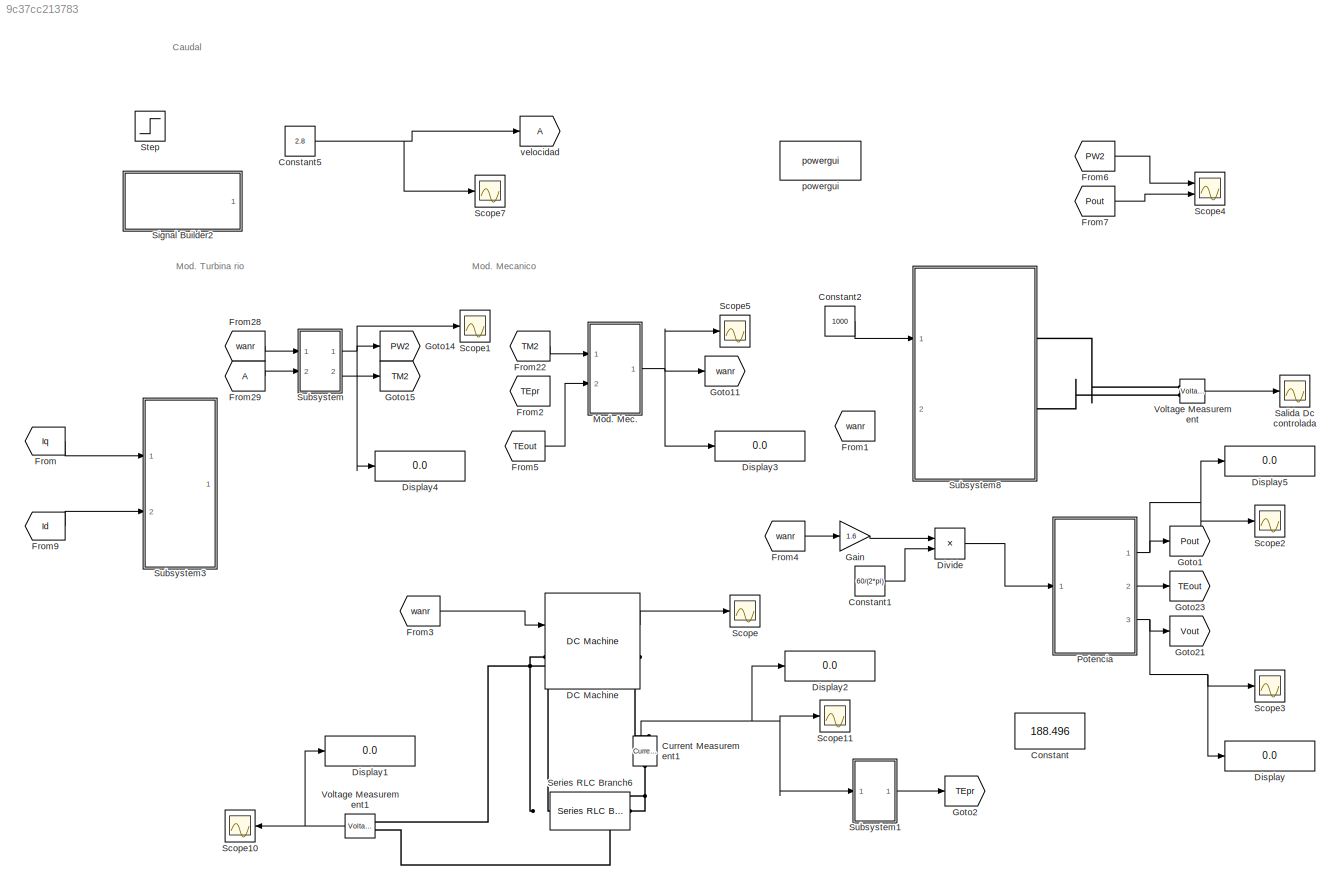
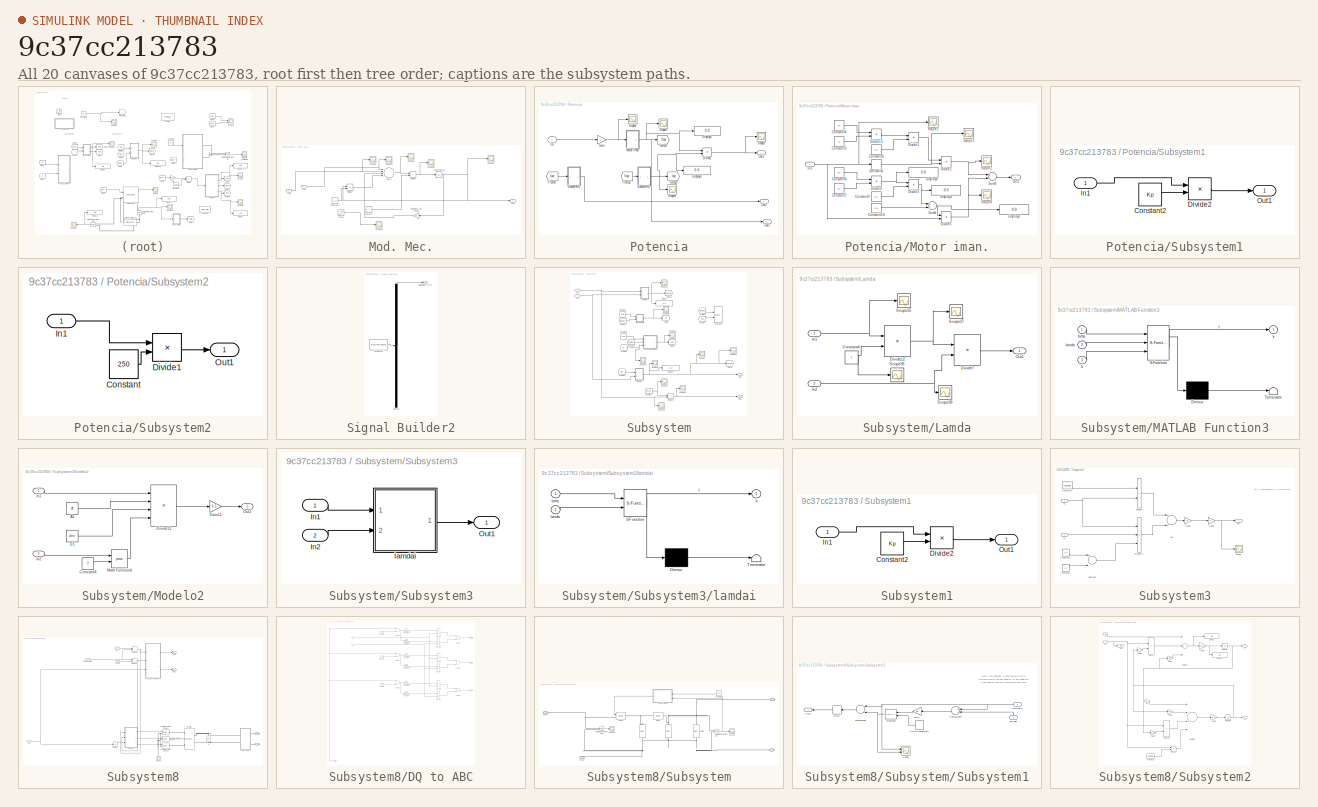
[diagram: thumbnail index - all 20 canvases of the model, root first then tree order]
MODEL slx_9c37cc213783
KIND model
CONFIG AbsTol = auto
CONFIG EnableMultiTasking = off
CONFIG FixedStep = 50e-3
CONFIG MaxStep = 0.01
CONFIG MinStep = auto
CONFIG RelTol = 1e-3
CONFIG SampleTimeConstraint = Unconstrained
CONFIG Solver = ode45
CONFIG SolverName = ode45
CONFIG StartTime = 0.0
CONFIG StopTime = 0.05
BLOCK [Constant] Constant
  Value = 188.496
BLOCK [Constant] Constant1
  Value = 60/(2*pi)
BLOCK [Constant] Constant2
  Value = 1000
BLOCK [Constant] Constant5
  Value = 2.8
BLOCK [Reference] Current Measurement1  REF=powerlib/Measurements/Current Measurement
  Ports = [0, 1, 0, 0, 0, 1, 1]
  SourceBlock = powerlib/Measurements/Current Measurement
  SourceProductBaseCode = PS
  SourceProductName = Simscape Power Systems
  SourceType = Current Measurement
  UserDataPersistent = on
BLOCK [Reference] DC Machine  REF=powerlib/Machines/DC Machine
  Ports = [1, 1, 0, 0, 0, 1, 1]
  SourceBlock = powerlib/Machines/DC Machine
  SourceProductBaseCode = PS
  SourceProductName = Simscape Power Systems
  SourceType = DC machine
BLOCK [Display] Display
  Decimation = 1
  Ports = [1]
BLOCK [Display] Display1
  Decimation = 1
  Ports = [1]
BLOCK [Display] Display2
  Decimation = 1
  Ports = [1]
BLOCK [Display] Display3
  Decimation = 1
  Ports = [1]
BLOCK [Display] Display4
  Decimation = 1
  Ports = [1]
BLOCK [Display] Display5
  Decimation = 1
  Ports = [1]
BLOCK [Product] Divide
  InputSameDT = off
  Inputs = **
  OutDataTypeStr = Inherit: Inherit via internal rule
  Ports = [2, 1]
  RndMeth = Floor
  SaturateOnIntegerOverflow = off
BLOCK [From] From
  GotoTag = Iq
  TagVisibility = global
BLOCK [From] From1
  GotoTag = wanr
BLOCK [From] From2
  GotoTag = TEpr
BLOCK [From] From22
  GotoTag = TM2
BLOCK [From] From28
  GotoTag = wanr
BLOCK [From] From29
BLOCK [From] From3
  GotoTag = wanr
BLOCK [From] From4
  GotoTag = wanr
BLOCK [From] From5
  GotoTag = TEout
BLOCK [From] From6
  GotoTag = PW2
BLOCK [From] From7
  GotoTag = Pout
BLOCK [From] From9
  GotoTag = Id
  TagVisibility = global
BLOCK [Gain] Gain
  Gain = 1.6
  OutDataTypeStr = Inherit: Inherit via internal rule
  ParamDataTypeStr = Inherit: Inherit via internal rule
  SaturateOnIntegerOverflow = off
BLOCK [Goto] Goto1
  GotoTag = Pout
BLOCK [Goto] Goto11
  GotoTag = wanr
BLOCK [Goto] Goto14
  GotoTag = PW2
BLOCK [Goto] Goto15
  GotoTag = TM2
BLOCK [Goto] Goto2
  GotoTag = TEpr
BLOCK [Goto] Goto21
  GotoTag = Vout
BLOCK [Goto] Goto23
  GotoTag = TEout
BLOCK [SubSystem] Mod. Mec.
  Ports = [2, 1]
  RequestExecContextInheritance = off
  Variant = off
BLOCK [Constant] Mod. Mec./Constant3
  Value = T_d
BLOCK [Product] Mod. Mec./Divide2
  InputSameDT = off
  Inputs = **
  OutDataTypeStr = Inherit: Inherit via internal rule
  Ports = [2, 1]
  RndMeth = Floor
  SaturateOnIntegerOverflow = off
BLOCK [Product] Mod. Mec./Divide9
  InputSameDT = off
  Inputs = */
  OutDataTypeStr = Inherit: Inherit via internal rule
  Ports = [2, 1]
  RndMeth = Floor
  SaturateOnIntegerOverflow = off
BLOCK [Inport] Mod. Mec./In1
  IconDisplay = Port number
BLOCK [Inport] Mod. Mec./In2
  IconDisplay = Port number
  Port = 2
BLOCK [Integrator] Mod. Mec./Integrator6
  InitialCondition = 10
  Ports = [1, 1]
BLOCK [Gain] Mod. Mec./Oeficiente de friccion
  Gain = B
  OutDataTypeStr = Inherit: Inherit via internal rule
  ParamDataTypeStr = Inherit: Inherit via internal rule
  SaturateOnIntegerOverflow = off
BLOCK [Outport] Mod. Mec./Out1
  IconDisplay = Port number
BLOCK [Scope] Mod. Mec./Scope2
  NumInputPorts = 1
  Ports = [1]
  ScopeSpecificationString = Simulink.scopes.TimeScopeBlockCfg('CurrentConfiguration', extmgr.ConfigurationSet(extmgr.Configuration('Core','General UI',true),extmgr.Configuration('Core','Source UI',true),extmgr.Configuration('Sources','WiredSimulink',true,'DataLoggingVariableName','ScopeData3'),extmgr.Configuration('Visuals','Time Domain',true,'SerializedDisplays',{struct('MinYLimReal','-0.22113','MaxYLimReal','1.9902','YLabe...<+1383ch>
BLOCK [Scope] Mod. Mec./Scope27
  NumInputPorts = 1
  Ports = [1]
  ScopeSpecificationString = Simulink.scopes.TimeScopeBlockCfg('CurrentConfiguration', extmgr.ConfigurationSet(extmgr.Configuration('Core','General UI',true,'FigureColor',[1 1 1]),extmgr.Configuration('Core','Source UI',true),extmgr.Configuration('Sources','WiredSimulink',true,'DataLoggingVariableName','ScopeData11'),extmgr.Configuration('Visuals','Time Domain',true,'SerializedDisplays',{struct('MinYLimReal','2.92579','MaxYLi...<+1567ch>
BLOCK [Scope] Mod. Mec./Scope28
  NumInputPorts = 1
  Ports = [1]
  ScopeSpecificationString = Simulink.scopes.TimeScopeBlockCfg('CurrentConfiguration', extmgr.ConfigurationSet(extmgr.Configuration('Core','General UI',true),extmgr.Configuration('Core','Source UI',true),extmgr.Configuration('Sources','WiredSimulink',true,'DataLoggingVariableName','ScopeData12'),extmgr.Configuration('Visuals','Time Domain',true,'SerializedDisplays',{struct('MinYLimReal','-12.39659','MaxYLimReal','111.55513','...<+1399ch>
BLOCK [Scope] Mod. Mec./Scope29
  NumInputPorts = 1
  Ports = [1]
  ScopeSpecificationString = Simulink.scopes.TimeScopeBlockCfg('CurrentConfiguration', extmgr.ConfigurationSet(extmgr.Configuration('Core','General UI',true),extmgr.Configuration('Core','Source UI',true),extmgr.Configuration('Sources','WiredSimulink',true,'DataLoggingVariableName','ScopeData13'),extmgr.Configuration('Visuals','Time Domain',true,'SerializedDisplays',{struct('MinYLimReal','-12.44641','MaxYLimReal','112.01765','...<+1446ch>
BLOCK [Scope] Mod. Mec./Scope30
  NumInputPorts = 1
  Ports = [1]
  ScopeSpecificationString = Simulink.scopes.TimeScopeBlockCfg('CurrentConfiguration', extmgr.ConfigurationSet(extmgr.Configuration('Core','General UI',true),extmgr.Configuration('Core','Source UI',true),extmgr.Configuration('Sources','WiredSimulink',true,'DataLoggingVariableName','ScopeData14'),extmgr.Configuration('Visuals','Time Domain',true,'SerializedDisplays',{struct('MinYLimReal','-0.09284','MaxYLimReal','1.03317','YLa...<+1392ch>
BLOCK [Scope] Mod. Mec./Scope39
  NumInputPorts = 1
  Ports = [1]
  ScopeSpecificationString = Simulink.scopes.TimeScopeBlockCfg('CurrentConfiguration', extmgr.ConfigurationSet(extmgr.Configuration('Core','General UI',true),extmgr.Configuration('Core','Source UI',true),extmgr.Configuration('Sources','WiredSimulink',true,'DataLoggingVariableName','ScopeData7'),extmgr.Configuration('Visuals','Time Domain',true,'SerializedDisplays',{struct('MinYLimReal','3.00000','MaxYLimReal','5.00000','YLabe...<+1416ch>
BLOCK [Step] Mod. Mec./Step1
  After = 0
  Before = 4
  SampleTime = 0
  Time = 3
BLOCK [Sum] Mod. Mec./Sum4
  InputSameDT = off
  Inputs = |+---
  OutDataTypeStr = Inherit: Inherit via internal rule
  Ports = [4, 1]
  SaturateOnIntegerOverflow = off
BLOCK [Constant] Mod. Mec./inercia J
  Value = J
BLOCK [SubSystem] Potencia
  Ports = [1, 3]
  RequestExecContextInheritance = off
  Variant = off
BLOCK [Display] Potencia/Display2
  Decimation = 1
  Ports = [1]
BLOCK [Display] Potencia/Display3
  Decimation = 1
  Ports = [1]
BLOCK [Product] Potencia/Divide1
  InputSameDT = off
  Inputs = **
  OutDataTypeStr = Inherit: Inherit via internal rule
  Ports = [2, 1]
  RndMeth = Floor
  SaturateOnIntegerOverflow = off
BLOCK [From] Potencia/From10
  GotoTag = Vout
BLOCK [From] Potencia/From47
  GotoTag = Iout
BLOCK [Gain] Potencia/Gain
  OutDataTypeStr = Inherit: Inherit via internal rule
  ParamDataTypeStr = Inherit: Inherit via internal rule
  SaturateOnIntegerOverflow = off
BLOCK [Goto] Potencia/Goto21
  GotoTag = Vout
BLOCK [Goto] Potencia/Goto22
  GotoTag = Iout
BLOCK [Inport] Potencia/In1
  IconDisplay = Port number
BLOCK [SubSystem] Potencia/Motor iman.
  Ports = [1, 1]
  RequestExecContextInheritance = off
  Variant = off
BLOCK [Constant] Potencia/Motor iman./Constant10
  Value = Kb
BLOCK [Constant] Potencia/Motor iman./Constant3
  Value = Ji
BLOCK [Constant] Potencia/Motor iman./Constant4
  Value = Ri
BLOCK [Constant] Potencia/Motor iman./Constant6
  Value = Kp
BLOCK [Constant] Potencia/Motor iman./Constant7
  Value = Bi
BLOCK [Constant] Potencia/Motor iman./Constant8
  Value = Ri
BLOCK [Constant] Potencia/Motor iman./Constant9
  Value = Kp
BLOCK [Derivative] Potencia/Motor iman./Derivative
BLOCK [Display] Potencia/Motor iman./Display1
  Decimation = 1
  Ports = [1]
BLOCK [Display] Potencia/Motor iman./Display2
  Decimation = 1
  Ports = [1]
BLOCK [Display] Potencia/Motor iman./Display3
  Decimation = 1
  Ports = [1]
BLOCK [Product] Potencia/Motor iman./Divide1
  InputSameDT = off
  Inputs = */
  OutDataTypeStr = Inherit: Inherit via internal rule
  Ports = [2, 1]
BLOCK [Product] Potencia/Motor iman./Divide13
  InputSameDT = off
  Inputs = **
  OutDataTypeStr = Inherit: Inherit via internal rule
  Ports = [2, 1]
BLOCK [Product] Potencia/Motor iman./Divide2
  InputSameDT = off
  Inputs = **
  OutDataTypeStr = Inherit: Inherit via internal rule
  Ports = [2, 1]
BLOCK [Product] Potencia/Motor iman./Divide3
  InputSameDT = off
  Inputs = */
  OutDataTypeStr = Inherit: Inherit via internal rule
  Ports = [2, 1]
BLOCK [Product] Potencia/Motor iman./Divide4
  InputSameDT = off
  Inputs = **
  OutDataTypeStr = Inherit: Inherit via internal rule
  Ports = [2, 1]
BLOCK [Product] Potencia/Motor iman./Divide5
  InputSameDT = off
  Inputs = **
  OutDataTypeStr = Inherit: Inherit via internal rule
  Ports = [2, 1]
BLOCK [Inport] Potencia/Motor iman./In1
  IconDisplay = Port number
BLOCK [Outport] Potencia/Motor iman./Out1
  IconDisplay = Port number
BLOCK [Scope] Potencia/Motor iman./Scope1
  NumInputPorts = 1
  Ports = [1]
  ScopeSpecificationString = Simulink.scopes.TimeScopeBlockCfg('CurrentConfiguration', extmgr.ConfigurationSet(extmgr.Configuration('Core','General UI',true),extmgr.Configuration('Core','Source UI',true),extmgr.Configuration('Sources','WiredSimulink',true,'DataLoggingVariableName','ScopeData5'),extmgr.Configuration('Visuals','Time Domain',true,'SerializedDisplays',{struct('MinYLimReal','6.7756','MaxYLimReal','219.01959','YLab...<+1364ch>
BLOCK [Scope] Potencia/Motor iman./Scope2
  NumInputPorts = 1
  Ports = [1]
  ScopeSpecificationString = Simulink.scopes.TimeScopeBlockCfg('CurrentConfiguration', extmgr.ConfigurationSet(extmgr.Configuration('Core','General UI',true),extmgr.Configuration('Core','Source UI',true),extmgr.Configuration('Sources','WiredSimulink',true,'DataLoggingVariableName','ScopeData1'),extmgr.Configuration('Visuals','Time Domain',true,'SerializedDisplays',{struct('MinYLimReal','-73406.80392','MaxYLimReal','660661.235...<+1400ch>
BLOCK [Scope] Potencia/Motor iman./Scope3
  NumInputPorts = 1
  Ports = [1]
  ScopeSpecificationString = Simulink.scopes.TimeScopeBlockCfg('CurrentConfiguration', extmgr.ConfigurationSet(extmgr.Configuration('Core','General UI',true),extmgr.Configuration('Core','Source UI',true),extmgr.Configuration('Sources','WiredSimulink',true,'DataLoggingVariableName','ScopeData4'),extmgr.Configuration('Visuals','Time Domain',true,'SerializedDisplays',{struct('MinYLimReal','-1.00000','MaxYLimReal','1.00000','YLab...<+1369ch>
BLOCK [Scope] Potencia/Motor iman./Scope4
  NumInputPorts = 1
  Ports = [1]
  ScopeSpecificationString = Simulink.scopes.TimeScopeBlockCfg('CurrentConfiguration', extmgr.ConfigurationSet(extmgr.Configuration('Core','General UI',true),extmgr.Configuration('Core','Source UI',true),extmgr.Configuration('Sources','WiredSimulink',true,'DataLoggingVariableName','ScopeData2'),extmgr.Configuration('Visuals','Time Domain',true,'SerializedDisplays',{struct('MinYLimReal','6.06143','MaxYLimReal','269.64226','YLa...<+1372ch>
BLOCK [Sum] Potencia/Motor iman./Sum4
  InputSameDT = off
  OutDataTypeStr = Inherit: Inherit via internal rule
  Ports = [2, 1]
  SaturateOnIntegerOverflow = off
BLOCK [Sum] Potencia/Motor iman./Sum6
  InputSameDT = off
  OutDataTypeStr = Inherit: Inherit via internal rule
  Ports = [2, 1]
  SaturateOnIntegerOverflow = off
BLOCK [Outport] Potencia/Out1
  IconDisplay = Port number
BLOCK [Outport] Potencia/Out2
  IconDisplay = Port number
  Port = 2
BLOCK [Outport] Potencia/Out3
  IconDisplay = Port number
  Port = 3
BLOCK [Scope] Potencia/Scope1
  NumInputPorts = 1
  Ports = [1]
  ScopeSpecificationString = Simulink.scopes.TimeScopeBlockCfg('CurrentConfiguration', extmgr.ConfigurationSet(extmgr.Configuration('Core','General UI',true),extmgr.Configuration('Core','Source UI',true),extmgr.Configuration('Sources','WiredSimulink',true,'DataLoggingVariableName','ScopeData1'),extmgr.Configuration('Visuals','Time Domain',true,'SerializedDisplays',{struct('MinYLimReal','-2927482.83082','MaxYLimReal','2629922....<+1435ch>
BLOCK [Scope] Potencia/Scope2
  NumInputPorts = 1
  Ports = [1]
  ScopeSpecificationString = Simulink.scopes.TimeScopeBlockCfg('CurrentConfiguration', extmgr.ConfigurationSet(extmgr.Configuration('Core','General UI',true),extmgr.Configuration('Core','Source UI',true),extmgr.Configuration('Sources','WiredSimulink',true,'DataLoggingVariableName','ScopeData3'),extmgr.Configuration('Visuals','Time Domain',true,'SerializedDisplays',{struct('MinYLimReal','-530.81519','MaxYLimReal','4777.33676',...<+1403ch>
BLOCK [Scope] Potencia/Scope3
  NumInputPorts = 1
  Ports = [1]
  ScopeSpecificationString = Simulink.scopes.TimeScopeBlockCfg('CurrentConfiguration', extmgr.ConfigurationSet(extmgr.Configuration('Core','General UI',true),extmgr.Configuration('Core','Source UI',true),extmgr.Configuration('Sources','WiredSimulink',true,'DataLoggingVariableName','ScopeData2'),extmgr.Configuration('Visuals','Time Domain',true,'SerializedDisplays',{struct('MinYLimReal','5.04136','MaxYLimReal','154.62776','YLa...<+1369ch>
BLOCK [Scope] Potencia/Scope6
  NumInputPorts = 1
  Ports = [1]
  ScopeSpecificationString = Simulink.scopes.TimeScopeBlockCfg('CurrentConfiguration', extmgr.ConfigurationSet(extmgr.Configuration('Core','General UI',true),extmgr.Configuration('Core','Source UI',true),extmgr.Configuration('Sources','WiredSimulink',true,'DataLoggingVariableName','ScopeData2'),extmgr.Configuration('Visuals','Time Domain',true,'SerializedDisplays',{struct('MinYLimReal','-293.54299','MaxYLimReal','2643.18365',...<+1387ch>
BLOCK [SubSystem] Potencia/Subsystem1
  Ports = [1, 1]
  RequestExecContextInheritance = off
  Variant = off
BLOCK [Constant] Potencia/Subsystem1/Constant2
  Value = Kp
BLOCK [Product] Potencia/Subsystem1/Divide2
  InputSameDT = off
  Inputs = **
  OutDataTypeStr = Inherit: Inherit via internal rule
  Ports = [2, 1]
  RndMeth = Floor
  SaturateOnIntegerOverflow = off
BLOCK [Inport] Potencia/Subsystem1/In1
  IconDisplay = Port number
BLOCK [Outport] Potencia/Subsystem1/Out1
  IconDisplay = Port number
BLOCK [SubSystem] Potencia/Subsystem2
  Ports = [1, 1]
  RequestExecContextInheritance = off
  Variant = off
BLOCK [Constant] Potencia/Subsystem2/Constant
  Value = 250
BLOCK [Product] Potencia/Subsystem2/Divide1
  InputSameDT = off
  Inputs = */
  OutDataTypeStr = Inherit: Inherit via internal rule
  Ports = [2, 1]
  RndMeth = Floor
  SaturateOnIntegerOverflow = off
BLOCK [Inport] Potencia/Subsystem2/In1
  IconDisplay = Port number
BLOCK [Outport] Potencia/Subsystem2/Out1
  IconDisplay = Port number
BLOCK [Scope] Salida Dc controlada
  NumInputPorts = 1
  Ports = [1]
  ScopeSpecificationString = Simulink.scopes.TimeScopeBlockCfg('CurrentConfiguration', extmgr.ConfigurationSet(extmgr.Configuration('Core','General UI',true,'FigureColor',[0.156862745098039 0.156862745098039 0.156862745098039]),extmgr.Configuration('Core','Source UI',true),extmgr.Configuration('Sources','WiredSimulink',true,'DataLoggingLimitDataPoints',true,'DataLoggingVariableName','ScopeData1','DataLoggingSaveFormat','Array...<+2850ch>
BLOCK [Scope] Scope
  NumInputPorts = 1
  Ports = [1]
  ScopeSpecificationString = Simulink.scopes.TimeScopeBlockCfg('CurrentConfiguration', extmgr.ConfigurationSet(extmgr.Configuration('Core','General UI',true),extmgr.Configuration('Core','Source UI',true),extmgr.Configuration('Sources','WiredSimulink',true,'DataLoggingVariableName','ScopeData1'),extmgr.Configuration('Visuals','Time Domain',true,'SerializedDisplays',{struct('MinYLimReal','-47.25775','MaxYLimReal','258.37438','Y...<+1527ch>
BLOCK [Scope] Scope1
  NumInputPorts = 1
  Ports = [1]
  ScopeSpecificationString = Simulink.scopes.TimeScopeBlockCfg('CurrentConfiguration', extmgr.ConfigurationSet(extmgr.Configuration('Core','General UI',true),extmgr.Configuration('Core','Source UI',true),extmgr.Configuration('Sources','WiredSimulink',true,'DataLoggingVariableName','ScopeData4'),extmgr.Configuration('Visuals','Time Domain',true,'SerializedDisplays',{struct('MinYLimReal','-950.97876','MaxYLimReal','4703.0367','...<+1455ch>
BLOCK [Scope] Scope10
  NumInputPorts = 1
  Ports = [1]
  ScopeSpecificationString = Simulink.scopes.TimeScopeBlockCfg('CurrentConfiguration', extmgr.ConfigurationSet(extmgr.Configuration('Core','General UI',true),extmgr.Configuration('Core','Source UI',true),extmgr.Configuration('Sources','WiredSimulink',true,'DataLoggingVariableName','ScopeData2'),extmgr.Configuration('Visuals','Time Domain',true,'SerializedDisplays',{struct('MinYLimReal','-22.26963','MaxYLimReal','200.42667','Y...<+1490ch>
BLOCK [Scope] Scope11
  NumInputPorts = 1
  Ports = [1]
  ScopeSpecificationString = Simulink.scopes.TimeScopeBlockCfg('CurrentConfiguration', extmgr.ConfigurationSet(extmgr.Configuration('Core','General UI',true),extmgr.Configuration('Core','Source UI',true),extmgr.Configuration('Sources','WiredSimulink',true,'DataLoggingVariableName','ScopeData3'),extmgr.Configuration('Visuals','Time Domain',true,'SerializedDisplays',{struct('MinYLimReal','-0.01679','MaxYLimReal','0.15115','YLab...<+1379ch>
BLOCK [Scope] Scope2
  NumInputPorts = 1
  Ports = [1]
  ScopeSpecificationString = Simulink.scopes.TimeScopeBlockCfg('CurrentConfiguration', extmgr.ConfigurationSet(extmgr.Configuration('Core','General UI',true),extmgr.Configuration('Core','Source UI',true),extmgr.Configuration('Sources','WiredSimulink',true,'DataLoggingVariableName','ScopeData1'),extmgr.Configuration('Visuals','Time Domain',true,'SerializedDisplays',{struct('MinYLimReal','-172506303.91752','MaxYLimReal','155255...<+1435ch>
BLOCK [Scope] Scope3
  NumInputPorts = 1
  Ports = [1]
  ScopeSpecificationString = Simulink.scopes.TimeScopeBlockCfg('CurrentConfiguration', extmgr.ConfigurationSet(extmgr.Configuration('Core','General UI',true),extmgr.Configuration('Core','Source UI',true),extmgr.Configuration('Sources','WiredSimulink',true,'DataLoggingVariableName','ScopeData2'),extmgr.Configuration('Visuals','Time Domain',true,'SerializedDisplays',{struct('MinYLimReal','-73385.74639','MaxYLimReal','660795.912...<+1403ch>
BLOCK [Scope] Scope4
  NumInputPorts = 2
  Ports = [2]
  ScopeSpecificationString = Simulink.scopes.TimeScopeBlockCfg('CurrentConfiguration', extmgr.ConfigurationSet(extmgr.Configuration('Core','General UI',true),extmgr.Configuration('Core','Source UI',true),extmgr.Configuration('Sources','WiredSimulink',true,'DataLoggingVariableName','ScopeData4'),extmgr.Configuration('Visuals','Time Domain',true,'SerializedDisplays',{struct('MinYLimReal','-109700.17326','MaxYLimReal','987301.56...<+1465ch>
BLOCK [Scope] Scope5
  NumInputPorts = 1
  Ports = [1]
  ScopeSpecificationString = Simulink.scopes.TimeScopeBlockCfg('CurrentConfiguration', extmgr.ConfigurationSet(extmgr.Configuration('Core','General UI',true),extmgr.Configuration('Core','Source UI',true),extmgr.Configuration('Sources','WiredSimulink',true,'DataLoggingVariableName','ScopeData5'),extmgr.Configuration('Visuals','Time Domain',true,'SerializedDisplays',{struct('MinYLimReal','1.86968','MaxYLimReal','83.17284','YLab...<+1370ch>
BLOCK [Scope] Scope7
  NumInputPorts = 1
  Ports = [1]
  ScopeSpecificationString = Simulink.scopes.TimeScopeBlockCfg('CurrentConfiguration', extmgr.ConfigurationSet(extmgr.Configuration('Core','General UI',true,'FigureColor',[1 1 1]),extmgr.Configuration('Core','Source UI',true),extmgr.Configuration('Sources','WiredSimulink',true,'DataLoggingVariableName','ScopeData6'),extmgr.Configuration('Visuals','Time Domain',true,'TimeAxisLabels','All','SerializedDisplays',{struct('MinYLimR...<+1548ch>
BLOCK [Reference] Series RLC Branch6  REF=powerlib/Elements/Series RLC Branch
  Ports = [0, 0, 0, 0, 0, 1, 1]
  SourceBlock = powerlib/Elements/Series RLC Branch
  SourceProductBaseCode = PS
  SourceProductName = Simscape Power Systems
  SourceType = Series RLC Branch
BLOCK [SubSystem] Signal Builder2
  ClipboardFcn = sigbuilder_block('clipboard');
  CloseFcn = sigbuilder_block('close');
  ContinueFcn = sigbuilder_block('continue');
  CopyFcn = sigbuilder_block('copy');
  DeleteFcn = sigbuilder_block('delete');
  LoadFcn = sigbuilder_block('load');
  MaskHideContents = on
  ModelCloseFcn = sigbuilder_block('modelClose');
  NameChangeFcn = sigbuilder_block('namechange');
  OpenFcn = sigbuilder_block('open',[197.25 66 550.5 359.25 ]);
  PauseFcn = sigbuilder_block('pause');
  Ports = [0, 1]
  PreSaveFcn = sigbuilder_block('preSave');
  RequestExecContextInheritance = off
  StartFcn = sigbuilder_block('start');
  StopFcn = sigbuilder_block('stop');
  Tag = STV Subsys
  Variant = off
BLOCK [Demux] Signal Builder2/Demux
  Outputs = 1
  Ports = [1, 1]
  Tag = STV Demux
BLOCK [FromWorkspace] Signal Builder2/FromWs
  SampleTime = 0
  Tag = STV FromWs
  VariableName = tuvar
  ZeroCross = on
BLOCK [Outport] Signal Builder2/Velocidad (m//s)
  IconDisplay = Port number
  Tag = STV Outport
BLOCK [Step] Step
  After = 2.888
  Before = 2.5
  SampleTime = 0
  Time = 10
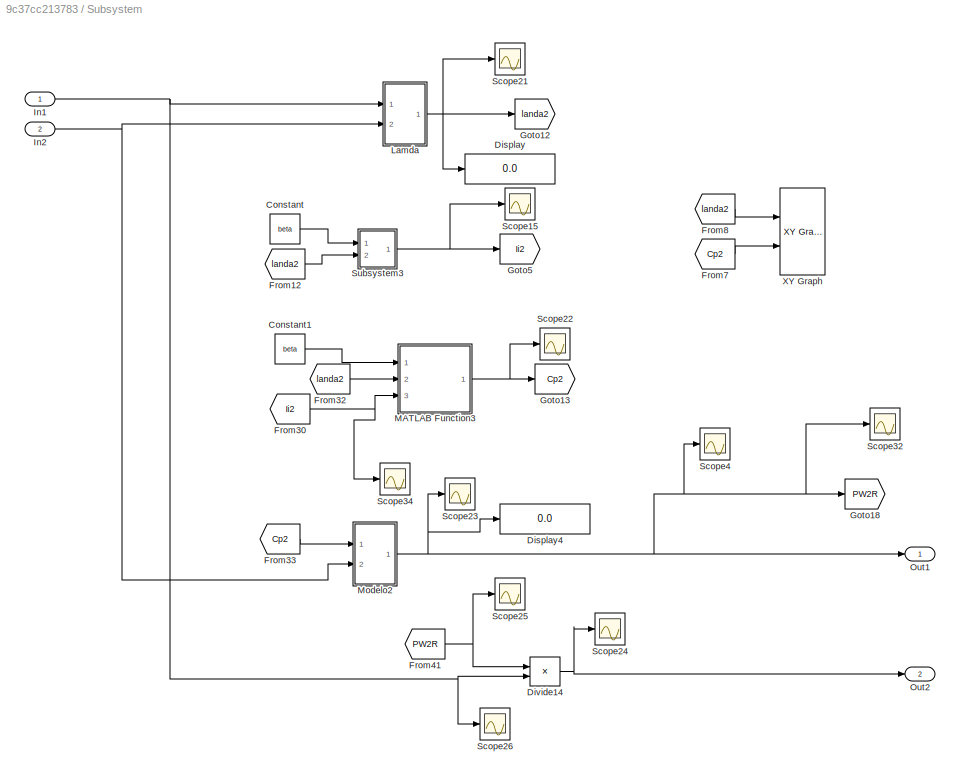
BLOCK [SubSystem] Subsystem
  Ports = [2, 2]
  RequestExecContextInheritance = off
  Variant = off
BLOCK [Constant] Subsystem/Constant
  Value = beta
BLOCK [Constant] Subsystem/Constant1
  Value = beta
BLOCK [Display] Subsystem/Display
  Decimation = 1
  Ports = [1]
BLOCK [Display] Subsystem/Display4
  Decimation = 1
  Ports = [1]
BLOCK [Product] Subsystem/Divide14
  InputSameDT = off
  Inputs = */
  OutDataTypeStr = Inherit: Inherit via internal rule
  Ports = [2, 1]
  RndMeth = Floor
  SaturateOnIntegerOverflow = off
BLOCK [From] Subsystem/From12
  GotoTag = landa2
BLOCK [From] Subsystem/From30
  GotoTag = Ii2
BLOCK [From] Subsystem/From32
  GotoTag = landa2
BLOCK [From] Subsystem/From33
  GotoTag = Cp2
BLOCK [From] Subsystem/From41
  GotoTag = PW2R
BLOCK [From] Subsystem/From7
  Commented = on
  GotoTag = Cp2
BLOCK [From] Subsystem/From8
  Commented = on
  GotoTag = landa2
BLOCK [Goto] Subsystem/Goto12
  GotoTag = landa2
BLOCK [Goto] Subsystem/Goto13
  GotoTag = Cp2
BLOCK [Goto] Subsystem/Goto18
  GotoTag = PW2R
BLOCK [Goto] Subsystem/Goto5
  GotoTag = Ii2
BLOCK [Inport] Subsystem/In1
  IconDisplay = Port number
BLOCK [Inport] Subsystem/In2
  IconDisplay = Port number
  Port = 2
BLOCK [SubSystem] Subsystem/Lamda
  Ports = [2, 1]
  RequestExecContextInheritance = off
  Variant = off
BLOCK [Constant] Subsystem/Lamda/Constant4
  Value = r
BLOCK [Product] Subsystem/Lamda/Divide12
  InputSameDT = off
  Inputs = **
  OutDataTypeStr = Inherit: Inherit via internal rule
  Ports = [2, 1]
  RndMeth = Floor
  SaturateOnIntegerOverflow = off
BLOCK [Product] Subsystem/Lamda/Divide7
  InputSameDT = off
  Inputs = */
  OutDataTypeStr = Inherit: Inherit via internal rule
  Ports = [2, 1]
  RndMeth = Floor
  SaturateOnIntegerOverflow = off
BLOCK [Inport] Subsystem/Lamda/In1
  IconDisplay = Port number
BLOCK [Inport] Subsystem/Lamda/In2
  IconDisplay = Port number
  Port = 2
BLOCK [Outport] Subsystem/Lamda/Out1
  IconDisplay = Port number
BLOCK [Scope] Subsystem/Lamda/Scope35
  NumInputPorts = 1
  Ports = [1]
  ScopeSpecificationString = Simulink.scopes.TimeScopeBlockCfg('CurrentConfiguration', extmgr.ConfigurationSet(extmgr.Configuration('Core','General UI',true),extmgr.Configuration('Core','Source UI',true),extmgr.Configuration('Sources','WiredSimulink',true,'DataLoggingVariableName','ScopeData3'),extmgr.Configuration('Visuals','Time Domain',true,'SerializedDisplays',{struct('MinYLimReal','5.6875','MaxYLimReal','48.8125','YLabel...<+1643ch>
BLOCK [Scope] Subsystem/Lamda/Scope36
  NumInputPorts = 1
  Ports = [1]
  ScopeSpecificationString = Simulink.scopes.TimeScopeBlockCfg('CurrentConfiguration', extmgr.ConfigurationSet(extmgr.Configuration('Core','General UI',true),extmgr.Configuration('Core','Source UI',true),extmgr.Configuration('Sources','WiredSimulink',true,'DataLoggingVariableName','ScopeData4'),extmgr.Configuration('Visuals','Time Domain',true,'SerializedDisplays',{struct('MinYLimReal','0.4','MaxYLimReal','0.6','YLabelReal','...<+1363ch>
BLOCK [Scope] Subsystem/Lamda/Scope37
  NumInputPorts = 1
  Ports = [1]
  ScopeSpecificationString = Simulink.scopes.TimeScopeBlockCfg('CurrentConfiguration', extmgr.ConfigurationSet(extmgr.Configuration('Core','General UI',true),extmgr.Configuration('Core','Source UI',true),extmgr.Configuration('Sources','WiredSimulink',true,'DataLoggingVariableName','ScopeData5'),extmgr.Configuration('Visuals','Time Domain',true,'SerializedDisplays',{struct('MinYLimReal','2.60111','MaxYLimReal','26.59001','YLab...<+1394ch>
BLOCK [Scope] Subsystem/Lamda/Scope38
  NumInputPorts = 1
  Ports = [1]
  ScopeSpecificationString = Simulink.scopes.TimeScopeBlockCfg('CurrentConfiguration', extmgr.ConfigurationSet(extmgr.Configuration('Core','General UI',true),extmgr.Configuration('Core','Source UI',true),extmgr.Configuration('Sources','WiredSimulink',true,'DataLoggingVariableName','ScopeData6'),extmgr.Configuration('Visuals','Time Domain',true,'SerializedDisplays',{struct('MinYLimReal','1.9','MaxYLimReal','2.9','YLabelReal','...<+1328ch>
BLOCK [SubSystem] Subsystem/MATLAB Function3
  ErrorFcn = Stateflow.Translate.translate
  PermitHierarchicalResolution = ExplicitOnly
  Ports = [3, 1]
  RequestExecContextInheritance = off
  SFBlockType = MATLAB Function
  TreatAsAtomicUnit = on
  Variant = off
BLOCK [Demux] Subsystem/MATLAB Function3/ Demux 
  Outputs = 1
  Ports = [1, 1]
BLOCK [S-Function] Subsystem/MATLAB Function3/ SFunction 
  EnableBusSupport = on
  FunctionName = sf_sfun
  PortCounts = [3 2]
  Ports = [3, 2]
  SFcnIsStateOwnerBlock = off
  SFunctionDeploymentMode = off
  Tag = Stateflow S-Function MODELODETURBINADERIOV5 2
BLOCK [Terminator] Subsystem/MATLAB Function3/ Terminator 
BLOCK [Inport] Subsystem/MATLAB Function3/Ii
  IconDisplay = Port number
  Port = 3
BLOCK [Inport] Subsystem/MATLAB Function3/beta
  IconDisplay = Port number
BLOCK [Inport] Subsystem/MATLAB Function3/landa
  IconDisplay = Port number
  Port = 2
BLOCK [Outport] Subsystem/MATLAB Function3/y
  IconDisplay = Port number
BLOCK [SubSystem] Subsystem/Modelo2
  Ports = [2, 1]
  RequestExecContextInheritance = off
  Variant = off
BLOCK [Constant] Subsystem/Modelo2/A1
  Value = A
BLOCK [Constant] Subsystem/Modelo2/Constant4
  Value = 3
BLOCK [Constant] Subsystem/Modelo2/D1
  Value = den
BLOCK [Product] Subsystem/Modelo2/Divide13
  InputSameDT = off
  Inputs = ****
  OutDataTypeStr = Inherit: Inherit via internal rule
  Ports = [4, 1]
BLOCK [Gain] Subsystem/Modelo2/Gain11
  Gain = 0.5
  OutDataTypeStr = Inherit: Inherit via internal rule
  ParamDataTypeStr = Inherit: Inherit via internal rule
  SaturateOnIntegerOverflow = off
BLOCK [Inport] Subsystem/Modelo2/In1
  IconDisplay = Port number
BLOCK [Inport] Subsystem/Modelo2/In2
  IconDisplay = Port number
  Port = 2
BLOCK [Math] Subsystem/Modelo2/Math Function6
  Operator = pow
  Ports = [2, 1]
BLOCK [Outport] Subsystem/Modelo2/Out1
  IconDisplay = Port number
BLOCK [Outport] Subsystem/Out1
  IconDisplay = Port number
BLOCK [Outport] Subsystem/Out2
  IconDisplay = Port number
  Port = 2
BLOCK [Scope] Subsystem/Scope15
  NumInputPorts = 1
  Ports = [1]
  ScopeSpecificationString = Simulink.scopes.TimeScopeBlockCfg('CurrentConfiguration', extmgr.ConfigurationSet(extmgr.Configuration('Core','General UI',true),extmgr.Configuration('Core','Source UI',true),extmgr.Configuration('Sources','WiredSimulink',true,'DataLoggingVariableName','ScopeData2'),extmgr.Configuration('Visuals','Time Domain',true,'SerializedDisplays',{struct('MinYLimReal','-0.62327','MaxYLimReal','24.65706','YLa...<+1402ch>
BLOCK [Scope] Subsystem/Scope21
  NumInputPorts = 1
  Ports = [1]
  ScopeSpecificationString = Simulink.scopes.TimeScopeBlockCfg('CurrentConfiguration', extmgr.ConfigurationSet(extmgr.Configuration('Core','General UI',true),extmgr.Configuration('Core','Source UI',true),extmgr.Configuration('Sources','WiredSimulink',true,'DataLoggingVariableName','ScopeData5'),extmgr.Configuration('Visuals','Time Domain',true,'SerializedDisplays',{struct('MinYLimReal','-0.41206','MaxYLimReal','21.56565','YLa...<+1412ch>
BLOCK [Scope] Subsystem/Scope22
  NumInputPorts = 1
  Ports = [1]
  ScopeSpecificationString = Simulink.scopes.TimeScopeBlockCfg('CurrentConfiguration', extmgr.ConfigurationSet(extmgr.Configuration('Core','General UI',true),extmgr.Configuration('Core','Source UI',true),extmgr.Configuration('Sources','WiredSimulink',true,'DataLoggingVariableName','ScopeData6'),extmgr.Configuration('Visuals','Time Domain',true,'SerializedDisplays',{struct('MinYLimReal','-0.04579','MaxYLimReal','0.53827','YLab...<+1429ch>
BLOCK [Scope] Subsystem/Scope23
  NumInputPorts = 1
  Ports = [1]
  ScopeSpecificationString = Simulink.scopes.TimeScopeBlockCfg('CurrentConfiguration', extmgr.ConfigurationSet(extmgr.Configuration('Core','General UI',true,'FigureColor',[1 1 1]),extmgr.Configuration('Core','Source UI',true),extmgr.Configuration('Sources','WiredSimulink',true,'DataLoggingVariableName','ScopeData7'),extmgr.Configuration('Visuals','Time Domain',true,'SerializedDisplays',{struct('MinYLimReal','-282.63009','MaxY...<+1507ch>
BLOCK [Scope] Subsystem/Scope24
  NumInputPorts = 1
  Ports = [1]
  ScopeSpecificationString = Simulink.scopes.TimeScopeBlockCfg('CurrentConfiguration', extmgr.ConfigurationSet(extmgr.Configuration('Core','General UI',true),extmgr.Configuration('Core','Source UI',true),extmgr.Configuration('Sources','WiredSimulink',true,'DataLoggingVariableName','ScopeData8'),extmgr.Configuration('Visuals','Time Domain',true,'SerializedDisplays',{struct('MinYLimReal','-26.23799','MaxYLimReal','66.32037','YL...<+1373ch>
BLOCK [Scope] Subsystem/Scope25
  NumInputPorts = 1
  Ports = [1]
  ScopeSpecificationString = Simulink.scopes.TimeScopeBlockCfg('CurrentConfiguration', extmgr.ConfigurationSet(extmgr.Configuration('Core','General UI',true),extmgr.Configuration('Core','Source UI',true),extmgr.Configuration('Sources','WiredSimulink',true,'DataLoggingVariableName','ScopeData9'),extmgr.Configuration('Visuals','Time Domain',true,'SerializedDisplays',{struct('MinYLimReal','-1861.59136','MaxYLimReal','3549.53133'...<+1396ch>
BLOCK [Scope] Subsystem/Scope26
  NumInputPorts = 1
  Ports = [1]
  ScopeSpecificationString = Simulink.scopes.TimeScopeBlockCfg('CurrentConfiguration', extmgr.ConfigurationSet(extmgr.Configuration('Core','General UI',true),extmgr.Configuration('Core','Source UI',true),extmgr.Configuration('Sources','WiredSimulink',true,'DataLoggingVariableName','ScopeData10'),extmgr.Configuration('Visuals','Time Domain',true,'SerializedDisplays',{struct('MinYLimReal','5.6875','MaxYLimReal','48.8125','YLabe...<+1363ch>
BLOCK [Scope] Subsystem/Scope32
  NumInputPorts = 1
  Ports = [1]
  ScopeSpecificationString = Simulink.scopes.TimeScopeBlockCfg('CurrentConfiguration', extmgr.ConfigurationSet(extmgr.Configuration('Core','General UI',true),extmgr.Configuration('Core','Source UI',true),extmgr.Configuration('Sources','WiredSimulink',true,'DataLoggingVariableName','ScopeData16'),extmgr.Configuration('Visuals','Time Domain',true,'SerializedDisplays',{struct('MinYLimReal','-520.82156','MaxYLimReal','4687.39404'...<+1422ch>
BLOCK [Scope] Subsystem/Scope34
  NumInputPorts = 1
  Ports = [1]
  ScopeSpecificationString = Simulink.scopes.TimeScopeBlockCfg('CurrentConfiguration', extmgr.ConfigurationSet(extmgr.Configuration('Core','General UI',true),extmgr.Configuration('Core','Source UI',true),extmgr.Configuration('Sources','WiredSimulink',true,'DataLoggingVariableName','ScopeData2'),extmgr.Configuration('Visuals','Time Domain',true,'SerializedDisplays',{struct('MinYLimReal','-1.41755','MaxYLimReal','13.56022','YLa...<+1367ch>
BLOCK [Scope] Subsystem/Scope4
  NumInputPorts = 1
  Ports = [1]
  ScopeSpecificationString = Simulink.scopes.TimeScopeBlockCfg('CurrentConfiguration', extmgr.ConfigurationSet(extmgr.Configuration('Core','General UI',true),extmgr.Configuration('Core','Source UI',true),extmgr.Configuration('Sources','WiredSimulink',true,'DataLoggingVariableName','ScopeData3'),extmgr.Configuration('Visuals','Time Domain',true,'SerializedDisplays',{struct('MinYLimReal','-424.53714','MaxYLimReal','4639.64684',...<+1413ch>
BLOCK [SubSystem] Subsystem/Subsystem3
  Ports = [2, 1]
  RequestExecContextInheritance = off
  Variant = off
BLOCK [Inport] Subsystem/Subsystem3/In1
  IconDisplay = Port number
BLOCK [Inport] Subsystem/Subsystem3/In2
  IconDisplay = Port number
  Port = 2
BLOCK [Outport] Subsystem/Subsystem3/Out1
  IconDisplay = Port number
BLOCK [SubSystem] Subsystem/Subsystem3/lamdai
  ErrorFcn = Stateflow.Translate.translate
  PermitHierarchicalResolution = ExplicitOnly
  Ports = [2, 1]
  RequestExecContextInheritance = off
  SFBlockType = MATLAB Function
  TreatAsAtomicUnit = on
  Variant = off
BLOCK [Demux] Subsystem/Subsystem3/lamdai/ Demux 
  Outputs = 1
  Ports = [1, 1]
BLOCK [S-Function] Subsystem/Subsystem3/lamdai/ SFunction 
  EnableBusSupport = on
  FunctionName = sf_sfun
  PortCounts = [2 2]
  Ports = [2, 2]
  SFcnIsStateOwnerBlock = off
  SFunctionDeploymentMode = off
  Tag = Stateflow S-Function MODELODETURBINADERIOV5 3
BLOCK [Terminator] Subsystem/Subsystem3/lamdai/ Terminator 
BLOCK [Outport] Subsystem/Subsystem3/lamdai/Ii
  IconDisplay = Port number
BLOCK [Inport] Subsystem/Subsystem3/lamdai/beta
  IconDisplay = Port number
BLOCK [Inport] Subsystem/Subsystem3/lamdai/landa
  IconDisplay = Port number
  Port = 2
BLOCK [Reference] Subsystem/XY Graph  REF=simulink/Sinks/XY Graph
  Commented = on
  Ports = [2]
  SourceBlock = simulink/Sinks/XY Graph
  SourceProductBaseCode = SL
  SourceProductName = Simulink
  SourceType = XY scope.
BLOCK [SubSystem] Subsystem1
  Ports = [1, 1]
  RequestExecContextInheritance = off
  Variant = off
BLOCK [Constant] Subsystem1/Constant2
  Value = Kp
BLOCK [Product] Subsystem1/Divide2
  InputSameDT = off
  Inputs = **
  OutDataTypeStr = Inherit: Inherit via internal rule
  Ports = [2, 1]
  RndMeth = Floor
  SaturateOnIntegerOverflow = off
BLOCK [Inport] Subsystem1/In1
  IconDisplay = Port number
BLOCK [Outport] Subsystem1/Out1
  IconDisplay = Port number
BLOCK [SubSystem] Subsystem3
  Ports = [2, 1]
  RequestExecContextInheritance = off
  Variant = off
BLOCK [Sum] Subsystem3/Add
  InputSameDT = off
  OutDataTypeStr = Inherit: Inherit via internal rule
  Ports = [2, 1]
  SaturateOnIntegerOverflow = off
BLOCK [Constant] Subsystem3/Constant1
  Value = Lambda
BLOCK [Constant] Subsystem3/Constant2
  Value = L_d
BLOCK [Constant] Subsystem3/Constant3
  Value = L_q
BLOCK [Gain] Subsystem3/Gain5
  Gain = P
  OutDataTypeStr = Inherit: Inherit via internal rule
  ParamDataTypeStr = Inherit: Inherit via internal rule
  SaturateOnIntegerOverflow = off
BLOCK [Gain] Subsystem3/Gain6
  Gain = 1.5
  OutDataTypeStr = Inherit: Inherit via internal rule
  ParamDataTypeStr = Inherit: Inherit via internal rule
  SaturateOnIntegerOverflow = off
BLOCK [Inport] Subsystem3/Id
  IconDisplay = Port number
  Port = 2
BLOCK [Inport] Subsystem3/Iq
  IconDisplay = Port number
BLOCK [Product] Subsystem3/Product
  InputSameDT = off
  OutDataTypeStr = Inherit: Inherit via internal rule
  Ports = [2, 1]
  RndMeth = Floor
  SaturateOnIntegerOverflow = off
BLOCK [Product] Subsystem3/Product1
  InputSameDT = off
  Inputs = 3
  OutDataTypeStr = Inherit: Inherit via internal rule
  Ports = [3, 1]
  RndMeth = Floor
  SaturateOnIntegerOverflow = off
BLOCK [Scope] Subsystem3/Scope
  NumInputPorts = 1
  Ports = [1]
  ScopeSpecificationString = Simulink.scopes.TimeScopeBlockCfg('CurrentConfiguration', extmgr.ConfigurationSet(extmgr.Configuration('Core','General UI',true,'FigureColor',[0.156862745098039 0.156862745098039 0.156862745098039]),extmgr.Configuration('Core','Source UI',true),extmgr.Configuration('Sources','WiredSimulink',true,'DataLogging',true,'DataLoggingVariableName','te12','DataLoggingSaveFormat','Array','DataLoggingDecimat...<+2727ch>
BLOCK [Sum] Subsystem3/Subtract
  InputSameDT = off
  Inputs = +-
  OutDataTypeStr = Inherit: Inherit via internal rule
  Ports = [2, 1]
  SaturateOnIntegerOverflow = off
BLOCK [Outport] Subsystem3/Te
  IconDisplay = Port number
BLOCK [SubSystem] Subsystem8
  Ports = [2, 0, 0, 0, 0, 0, 2]
  RequestExecContextInheritance = off
  Variant = off
BLOCK [PMIOPort] Subsystem8/+
  Port = 1
  Side = Right
BLOCK [PMIOPort] Subsystem8/-
  Port = 2
  Side = Right
BLOCK [Reference] Subsystem8/C  REF=powerlib/Elements/Series RLC Branch
  Ports = [0, 0, 0, 0, 0, 1, 1]
  SourceBlock = powerlib/Elements/Series RLC Branch
  SourceProductBaseCode = PS
  SourceProductName = Simscape Power Systems
  SourceType = Series RLC Branch
BLOCK [Inport] Subsystem8/Carga resistiva
  IconDisplay = Port number
BLOCK [Reference] Subsystem8/Controlled Voltage Source  REF=powerlib/Electrical
Sources/Controlled Voltage Source
  Ports = [1, 0, 0, 0, 0, 1, 1]
  SourceBlock = powerlib/Electrical\nSources/Controlled Voltage Source
  SourceProductBaseCode = PS
  SourceProductName = Simscape Power Systems
  SourceType = Controlled Voltage Source
BLOCK [Reference] Subsystem8/Controlled Voltage Source1  REF=powerlib/Electrical
Sources/Controlled Voltage Source
  Ports = [1, 0, 0, 0, 0, 1, 1]
  SourceBlock = powerlib/Electrical\nSources/Controlled Voltage Source
  SourceProductBaseCode = PS
  SourceProductName = Simscape Power Systems
  SourceType = Controlled Voltage Source
BLOCK [Reference] Subsystem8/Controlled Voltage Source2  REF=powerlib/Electrical
Sources/Controlled Voltage Source
  Ports = [1, 0, 0, 0, 0, 1, 1]
  SourceBlock = powerlib/Electrical\nSources/Controlled Voltage Source
  SourceProductBaseCode = PS
  SourceProductName = Simscape Power Systems
  SourceType = Controlled Voltage Source
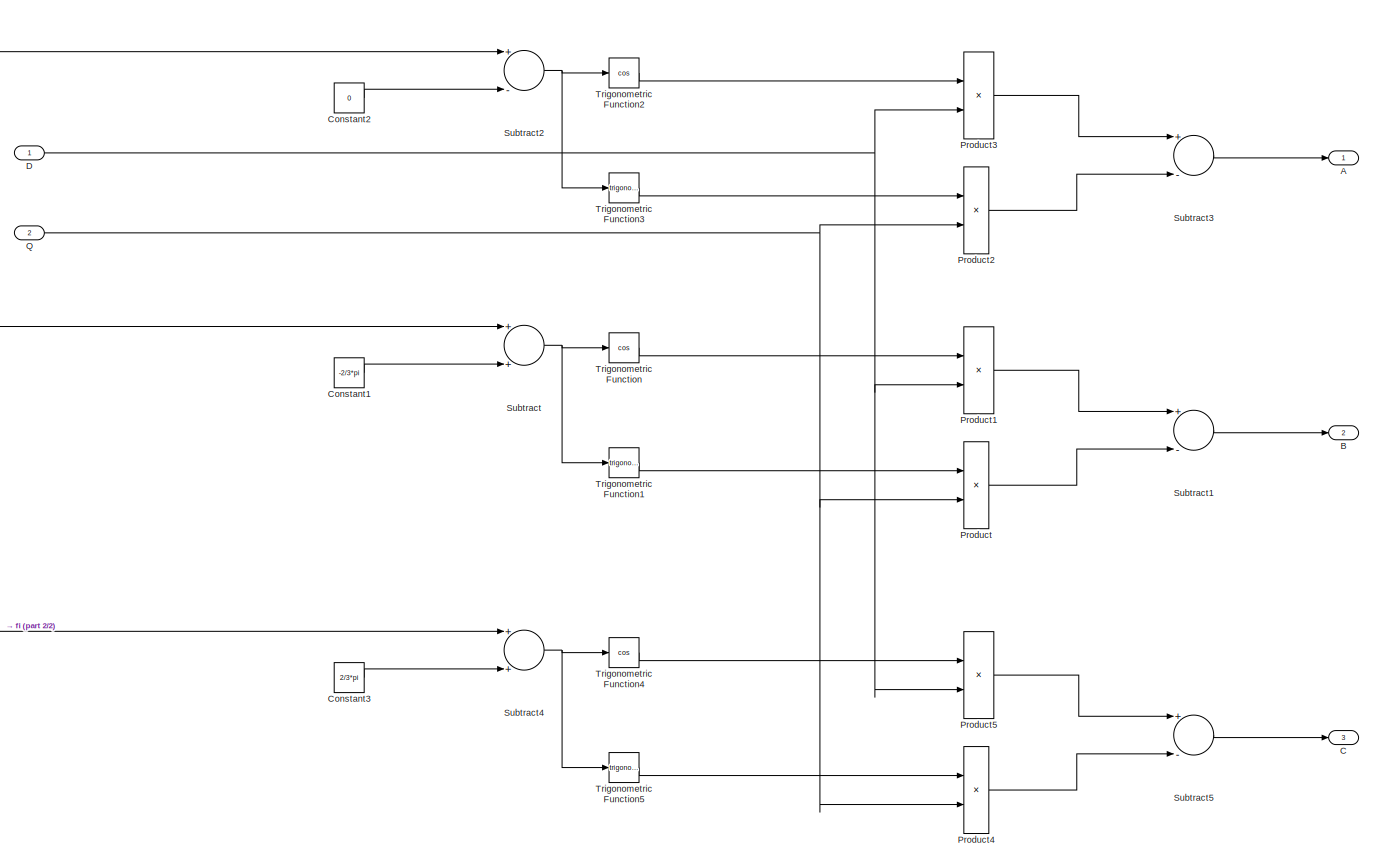
[diagram: Subsystem8/DQ to ABC - part 1/2, full width, top band]
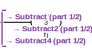
[diagram: Subsystem8/DQ to ABC - part 2/2, bottom left region]
BLOCK [SubSystem] Subsystem8/DQ to ABC
  Ports = [3, 3]
  RequestExecContextInheritance = off
  Variant = off
BLOCK [Outport] Subsystem8/DQ to ABC/A
  IconDisplay = Port number
BLOCK [Outport] Subsystem8/DQ to ABC/B 
  IconDisplay = Port number
  Port = 2
BLOCK [Outport] Subsystem8/DQ to ABC/C
  IconDisplay = Port number
  Port = 3
BLOCK [Constant] Subsystem8/DQ to ABC/Constant1
  Value = -2/3*pi
BLOCK [Constant] Subsystem8/DQ to ABC/Constant2
  Value = 0
BLOCK [Constant] Subsystem8/DQ to ABC/Constant3
  Value = 2/3*pi
BLOCK [Inport] Subsystem8/DQ to ABC/D
  IconDisplay = Port number
BLOCK [Product] Subsystem8/DQ to ABC/Product
  InputSameDT = off
  OutDataTypeStr = Inherit: Inherit via internal rule
  Ports = [2, 1]
  RndMeth = Floor
  SaturateOnIntegerOverflow = off
BLOCK [Product] Subsystem8/DQ to ABC/Product1
  InputSameDT = off
  OutDataTypeStr = Inherit: Inherit via internal rule
  Ports = [2, 1]
  RndMeth = Floor
  SaturateOnIntegerOverflow = off
BLOCK [Product] Subsystem8/DQ to ABC/Product2
  InputSameDT = off
  OutDataTypeStr = Inherit: Inherit via internal rule
  Ports = [2, 1]
  RndMeth = Floor
  SaturateOnIntegerOverflow = off
BLOCK [Product] Subsystem8/DQ to ABC/Product3
  InputSameDT = off
  OutDataTypeStr = Inherit: Inherit via internal rule
  Ports = [2, 1]
  RndMeth = Floor
  SaturateOnIntegerOverflow = off
BLOCK [Product] Subsystem8/DQ to ABC/Product4
  InputSameDT = off
  OutDataTypeStr = Inherit: Inherit via internal rule
  Ports = [2, 1]
  RndMeth = Floor
  SaturateOnIntegerOverflow = off
BLOCK [Product] Subsystem8/DQ to ABC/Product5
  InputSameDT = off
  OutDataTypeStr = Inherit: Inherit via internal rule
  Ports = [2, 1]
  RndMeth = Floor
  SaturateOnIntegerOverflow = off
BLOCK [Inport] Subsystem8/DQ to ABC/Q
  IconDisplay = Port number
  Port = 2
BLOCK [Sum] Subsystem8/DQ to ABC/Subtract
  InputSameDT = off
  OutDataTypeStr = Inherit: Inherit via internal rule
  Ports = [2, 1]
  SaturateOnIntegerOverflow = off
BLOCK [Sum] Subsystem8/DQ to ABC/Subtract1
  InputSameDT = off
  Inputs = +-
  OutDataTypeStr = Inherit: Inherit via internal rule
  Ports = [2, 1]
  SaturateOnIntegerOverflow = off
BLOCK [Sum] Subsystem8/DQ to ABC/Subtract2
  InputSameDT = off
  Inputs = +-
  OutDataTypeStr = Inherit: Inherit via internal rule
  Ports = [2, 1]
  SaturateOnIntegerOverflow = off
BLOCK [Sum] Subsystem8/DQ to ABC/Subtract3
  InputSameDT = off
  Inputs = +-
  OutDataTypeStr = Inherit: Inherit via internal rule
  Ports = [2, 1]
  SaturateOnIntegerOverflow = off
BLOCK [Sum] Subsystem8/DQ to ABC/Subtract4
  InputSameDT = off
  OutDataTypeStr = Inherit: Inherit via internal rule
  Ports = [2, 1]
  SaturateOnIntegerOverflow = off
BLOCK [Sum] Subsystem8/DQ to ABC/Subtract5
  InputSameDT = off
  Inputs = +-
  OutDataTypeStr = Inherit: Inherit via internal rule
  Ports = [2, 1]
  SaturateOnIntegerOverflow = off
BLOCK [Trigonometry] Subsystem8/DQ to ABC/Trigonometric Function
  Operator = cos
  Ports = [1, 1]
BLOCK [Trigonometry] Subsystem8/DQ to ABC/Trigonometric Function1
  Ports = [1, 1]
BLOCK [Trigonometry] Subsystem8/DQ to ABC/Trigonometric Function2
  Operator = cos
  Ports = [1, 1]
BLOCK [Trigonometry] Subsystem8/DQ to ABC/Trigonometric Function3
  Ports = [1, 1]
BLOCK [Trigonometry] Subsystem8/DQ to ABC/Trigonometric Function4
  Operator = cos
  Ports = [1, 1]
BLOCK [Trigonometry] Subsystem8/DQ to ABC/Trigonometric Function5
  Ports = [1, 1]
BLOCK [Inport] Subsystem8/DQ to ABC/fi
  IconDisplay = Port number
  Port = 3
BLOCK [From] Subsystem8/From
  GotoTag = Id
  TagVisibility = global
BLOCK [From] Subsystem8/From3
  GotoTag = Iq
  TagVisibility = global
BLOCK [Goto] Subsystem8/Goto
  GotoTag = Id
  TagVisibility = global
BLOCK [Goto] Subsystem8/Goto1
  GotoTag = Iq
  TagVisibility = global
BLOCK [Reference] Subsystem8/Ground  REF=powerlib/Elements/Ground
  Ports = [0, 0, 0, 0, 0, 1]
  SourceBlock = powerlib/Elements/Ground
  SourceProductBaseCode = PS
  SourceProductName = Simscape Power Systems
  SourceType = Ground
BLOCK [Integrator] Subsystem8/Integrator
  Ports = [1, 1]
BLOCK [Product] Subsystem8/Product
  InputSameDT = off
  OutDataTypeStr = Inherit: Inherit via internal rule
  Ports = [2, 1]
  RndMeth = Floor
  SaturateOnIntegerOverflow = off
BLOCK [Product] Subsystem8/Product1
  InputSameDT = off
  OutDataTypeStr = Inherit: Inherit via internal rule
  Ports = [2, 1]
  RndMeth = Floor
  SaturateOnIntegerOverflow = off
BLOCK [Reference] Subsystem8/Rectifier  REF=powerlib/Power
Electronics/Universal Bridge
  AttributesFormatString = \n
  Ports = [0, 0, 0, 0, 0, 3, 2]
  SourceBlock = powerlib/Power\nElectronics/Universal Bridge
  SourceProductBaseCode = PS
  SourceProductName = Simscape Power Systems
  SourceType = Universal Bridge
BLOCK [SubSystem] Subsystem8/Subsystem
  Ports = [0, 0, 0, 0, 0, 2, 2]
  RequestExecContextInheritance = off
  Variant = off
BLOCK [PMIOPort] Subsystem8/Subsystem/+
  Port = 4
  Side = Right
BLOCK [PMIOPort] Subsystem8/Subsystem/-
  Port = 1
  Side = Right
BLOCK [Reference] Subsystem8/Subsystem/Carga  REF=powerlib/Elements/Series RLC Branch
  Ports = [0, 0, 0, 0, 0, 1, 1]
  SourceBlock = powerlib/Elements/Series RLC Branch
  SourceProductBaseCode = PS
  SourceProductName = Simscape Power Systems
  SourceType = Series RLC Branch
BLOCK [PMIOPort] Subsystem8/Subsystem/Conn2
  Port = 2
  Side = Left
BLOCK [PMIOPort] Subsystem8/Subsystem/Conn3
  Port = 3
  Side = Left
BLOCK [Constant] Subsystem8/Subsystem/Constant6
  Value = 175
BLOCK [Reference] Subsystem8/Subsystem/Diode  REF=powerlib/Power
Electronics/Diode
  Ports = [0, 0, 0, 0, 0, 1, 1]
  SourceBlock = powerlib/Power\nElectronics/Diode
  SourceProductBaseCode = PS
  SourceProductName = Simscape Power Systems
  SourceType = Diode
BLOCK [Reference] Subsystem8/Subsystem/L1  REF=powerlib/Elements/Series RLC Branch
  Ports = [0, 0, 0, 0, 0, 1, 1]
  SourceBlock = powerlib/Elements/Series RLC Branch
  SourceProductBaseCode = PS
  SourceProductName = Simscape Power Systems
  SourceType = Series RLC Branch
BLOCK [Reference] Subsystem8/Subsystem/Mosfet  REF=powerlib/Power
Electronics/Mosfet
  Ports = [1, 0, 0, 0, 0, 1, 1]
  SourceBlock = powerlib/Power\nElectronics/Mosfet
  SourceProductBaseCode = PS
  SourceProductName = Simscape Power Systems
  SourceType = Mosfet
BLOCK [Scope] Subsystem8/Subsystem/Scope2
  NumInputPorts = 1
  Ports = [1]
  ScopeSpecificationString = Simulink.scopes.TimeScopeBlockCfg('CurrentConfiguration', extmgr.ConfigurationSet(extmgr.Configuration('Core','General UI',true,'FigureColor',[0.156862745098039 0.156862745098039 0.156862745098039]),extmgr.Configuration('Core','Source UI',true),extmgr.Configuration('Sources','WiredSimulink',true,'DataLoggingVariableName','ScopeData3','DataLoggingSaveFormat','StructureWithTime','DataLoggingDecimati...<+2739ch>
BLOCK [Scope] Subsystem8/Subsystem/Scope5
  NumInputPorts = 1
  Ports = [1]
  ScopeSpecificationString = Simulink.scopes.TimeScopeBlockCfg('CurrentConfiguration', extmgr.ConfigurationSet(extmgr.Configuration('Core','General UI',true,'FigureColor',[0.156862745098039 0.156862745098039 0.156862745098039]),extmgr.Configuration('Core','Source UI',true),extmgr.Configuration('Sources','WiredSimulink',true,'DataLoggingVariableName','ScopeData6','DataLoggingSaveFormat','StructureWithTime','DataLoggingDecimati...<+2736ch>
BLOCK [SubSystem] Subsystem8/Subsystem/Subsystem1
  Ports = [2, 1]
  RequestExecContextInheritance = off
  Variant = off
BLOCK [Sum] Subsystem8/Subsystem/Subsystem1/Comparador
  InputSameDT = off
  OutDataTypeStr = Inherit: Inherit via internal rule
  Ports = [2, 1]
  SaturateOnIntegerOverflow = off
BLOCK [Gain] Subsystem8/Subsystem/Subsystem1/Gain
  Gain = 20
  OutDataTypeStr = Inherit: Inherit via internal rule
  ParamDataTypeStr = Inherit: Inherit via internal rule
  SaturateOnIntegerOverflow = off
BLOCK [Reference] Subsystem8/Subsystem/Subsystem1/Integrador  REF=simulink/Continuous/PID Controller
  Ports = [2, 1]
  SourceBlock = simulink/Continuous/PID Controller
  SourceProductBaseCode = SL
  SourceProductName = Simulink
  SourceType = PID 1dof
BLOCK [Outport] Subsystem8/Subsystem/Subsystem1/PWM 
  IconDisplay = Port number
BLOCK [DiscretePulseGenerator] Subsystem8/Subsystem/Subsystem1/Pulse Generator2
  Period = 40e-6
  Ports = [0, 1]
  PulseType = Time based
  PulseWidth = 50
BLOCK [Relay] Subsystem8/Subsystem/Subsystem1/Relay
  InputProcessing = Elements as channels (sample based)
BLOCK [Scope] Subsystem8/Subsystem/Subsystem1/Scope
  NumInputPorts = 2
  Ports = [2]
  ScopeSpecificationString = Simulink.scopes.TimeScopeBlockCfg('CurrentConfiguration', extmgr.ConfigurationSet(extmgr.Configuration('Core','General UI',true,'FigureColor',[0.156862745098039 0.156862745098039 0.156862745098039]),extmgr.Configuration('Core','Source UI',true),extmgr.Configuration('Sources','WiredSimulink',true,'DataLoggingVariableName','ScopeData4','DataLoggingSaveFormat','StructureWithTime','DataLoggingDecimati...<+3996ch>
BLOCK [Sum] Subsystem8/Subsystem/Subsystem1/comparador 
  InputSameDT = off
  Inputs = -+
  OutDataTypeStr = Inherit: Inherit via internal rule
  Ports = [2, 1]
  SaturateOnIntegerOverflow = off
BLOCK [Inport] Subsystem8/Subsystem/Subsystem1/entrada
  IconDisplay = Port number
  Port = 2
BLOCK [Inport] Subsystem8/Subsystem/Subsystem1/referencia
  IconDisplay = Port number
BLOCK [Reference] Subsystem8/Subsystem/Voltage Measurement  REF=powerlib/Measurements/Voltage Measurement
  Ports = [0, 1, 0, 0, 0, 2]
  SourceBlock = powerlib/Measurements/Voltage Measurement
  SourceProductBaseCode = PS
  SourceProductName = Simscape Power Systems
  SourceType = Voltage Measurement
  UserDataPersistent = on
BLOCK [Reference] Subsystem8/Subsystem/Voltage Measurement1  REF=powerlib/Measurements/Voltage Measurement
  Ports = [0, 1, 0, 0, 0, 2]
  SourceBlock = powerlib/Measurements/Voltage Measurement
  SourceProductBaseCode = PS
  SourceProductName = Simscape Power Systems
  SourceType = Voltage Measurement
  UserDataPersistent = on
BLOCK [Reference] Subsystem8/Subsystem/cC1  REF=powerlib/Elements/Series RLC Branch
  Ports = [0, 0, 0, 0, 0, 1, 1]
  SourceBlock = powerlib/Elements/Series RLC Branch
  SourceProductBaseCode = PS
  SourceProductName = Simscape Power Systems
  SourceType = Series RLC Branch
BLOCK [SubSystem] Subsystem8/Subsystem2
  Ports = [3, 2]
  RequestExecContextInheritance = off
  Variant = off
BLOCK [Constant] Subsystem8/Subsystem2/Constant1
  Value = Lambda
BLOCK [Display] Subsystem8/Subsystem2/Display
  Decimation = 1
  Ports = [1]
BLOCK [Display] Subsystem8/Subsystem2/Display1
  Decimation = 1
  Ports = [1]
BLOCK [Gain] Subsystem8/Subsystem2/Gain2
  Gain = 1/L_d
  OutDataTypeStr = Inherit: Inherit via internal rule
  ParamDataTypeStr = Inherit: Inherit via internal rule
  SaturateOnIntegerOverflow = off
BLOCK [Gain] Subsystem8/Subsystem2/Gain3
  Gain = Rs
  OutDataTypeStr = Inherit: Inherit via internal rule
  ParamDataTypeStr = Inherit: Inherit via internal rule
  SaturateOnIntegerOverflow = off
BLOCK [Gain] Subsystem8/Subsystem2/Gain4
  Gain = 1/L_q
  OutDataTypeStr = Inherit: Inherit via internal rule
  ParamDataTypeStr = Inherit: Inherit via internal rule
  SaturateOnIntegerOverflow = off
BLOCK [Gain] Subsystem8/Subsystem2/Gain5
  Gain = L_q
  OutDataTypeStr = Inherit: Inherit via internal rule
  ParamDataTypeStr = Inherit: Inherit via internal rule
  SaturateOnIntegerOverflow = off
BLOCK [Gain] Subsystem8/Subsystem2/Gain6
  Gain = Rs
  OutDataTypeStr = Inherit: Inherit via internal rule
  ParamDataTypeStr = Inherit: Inherit via internal rule
  SaturateOnIntegerOverflow = off
BLOCK [Gain] Subsystem8/Subsystem2/Gain7
  Gain = L_d
  OutDataTypeStr = Inherit: Inherit via internal rule
  ParamDataTypeStr = Inherit: Inherit via internal rule
  SaturateOnIntegerOverflow = off
BLOCK [Goto] Subsystem8/Subsystem2/Goto
  GotoTag = We
BLOCK [Outport] Subsystem8/Subsystem2/Id
  IconDisplay = Port number
BLOCK [Integrator] Subsystem8/Subsystem2/Integrator
  Ports = [1, 1]
BLOCK [Integrator] Subsystem8/Subsystem2/Integrator1
  Ports = [1, 1]
BLOCK [Outport] Subsystem8/Subsystem2/Iq
  IconDisplay = Port number
  Port = 2
BLOCK [Product] Subsystem8/Subsystem2/Product
  InputSameDT = off
  OutDataTypeStr = Inherit: Inherit via internal rule
  Ports = [2, 1]
  RndMeth = Floor
  SaturateOnIntegerOverflow = off
BLOCK [Product] Subsystem8/Subsystem2/Product1
  InputSameDT = off
  OutDataTypeStr = Inherit: Inherit via internal rule
  Ports = [2, 1]
  RndMeth = Floor
  SaturateOnIntegerOverflow = off
BLOCK [Product] Subsystem8/Subsystem2/Product2
  InputSameDT = off
  OutDataTypeStr = Inherit: Inherit via internal rule
  Ports = [2, 1]
  RndMeth = Floor
  SaturateOnIntegerOverflow = off
BLOCK [Sum] Subsystem8/Subsystem2/Subtract
  InputSameDT = off
  Inputs = -+-
  OutDataTypeStr = Inherit: Inherit via internal rule
  Ports = [3, 1]
  SaturateOnIntegerOverflow = off
BLOCK [Sum] Subsystem8/Subsystem2/Subtract1
  InputSameDT = off
  Inputs = --+-
  OutDataTypeStr = Inherit: Inherit via internal rule
  Ports = [4, 1]
  SaturateOnIntegerOverflow = off
BLOCK [Inport] Subsystem8/Subsystem2/Vd
  IconDisplay = Port number
BLOCK [Inport] Subsystem8/Subsystem2/Vq
  IconDisplay = Port number
  Port = 2
BLOCK [Inport] Subsystem8/Subsystem2/We
  IconDisplay = Port number
  Port = 3
BLOCK [Inport] Subsystem8/We
  IconDisplay = Port number
  Port = 2
BLOCK [Reference] Voltage Measurement  REF=powerlib/Measurements/Voltage Measurement
  Ports = [0, 1, 0, 0, 0, 2]
  SourceBlock = powerlib/Measurements/Voltage Measurement
  SourceProductBaseCode = PS
  SourceProductName = Simscape Power Systems
  SourceType = Voltage Measurement
  UserDataPersistent = on
BLOCK [Reference] Voltage Measurement1  REF=powerlib/Measurements/Voltage Measurement
  Ports = [0, 1, 0, 0, 0, 2]
  SourceBlock = powerlib/Measurements/Voltage Measurement
  SourceProductBaseCode = PS
  SourceProductName = Simscape Power Systems
  SourceType = Voltage Measurement
  UserDataPersistent = on
BLOCK [Reference] powergui  REF=powerlib/powergui
  Ports = []
  Priority = 1
  SourceBlock = powerlib/powergui
  SourceProductBaseCode = PS
  SourceProductName = Simscape Power Systems
  SourceType = PSB option menu block
BLOCK [Goto] velocidad
ANNOTATION (root): Caudal
ANNOTATION (root): Mod. Mecanico
ANNOTATION (root): Mod. Turbina rio
ANNOTATION Subsystem3: Te = 1,5P[Lambda.Iq + (Ld-Lq)Id.Iq]
ANNOTATION Subsystem8/Subsystem/Subsystem1: Nota: Para obtener la señal de error es la diferencia entre las dos señales, al ser negativa la entrada se realiza la suma para este caso
LINE Constant1:1 -> Divide:2
LINE Constant2:1 -> Subsystem8:1
NET Constant5:1 -> Scope7:1, velocidad:1
NET Current Measurement1:1 -> Display2:1, Scope11:1, Subsystem1:1
LINE DC Machine:1 -> Scope:1
LINE Divide:1 -> Potencia:1
LINE From22:1 -> Mod. Mec.:1
LINE From28:1 -> Subsystem:1
LINE From29:1 -> Subsystem:2
LINE From3:1 -> DC Machine:1
LINE From4:1 -> Gain:1
LINE From5:1 -> Mod. Mec.:2
LINE From6:1 -> Scope4:1
LINE From7:1 -> Scope4:2
LINE From9:1 -> Subsystem3:2
LINE From:1 -> Subsystem3:1
LINE Gain:1 -> Divide:1
LINE Mod. Mec./Constant3:1 -> Mod. Mec./Divide2:2
LINE Mod. Mec./Divide2:1 -> Mod. Mec./Sum4:4
NET Mod. Mec./Divide9:1 -> Mod. Mec./Integrator6:1, Mod. Mec./Scope30:1
NET Mod. Mec./In1:1 -> Mod. Mec./Scope29:1, Mod. Mec./Sum4:1
NET Mod. Mec./In2:1 -> Mod. Mec./Scope2:1, Mod. Mec./Sum4:2
NET Mod. Mec./Integrator6:1 -> Mod. Mec./Divide2:1, Mod. Mec./Oeficiente de friccion:1, Mod. Mec./Out1:1, Mod. Mec./Scope27:1
LINE Mod. Mec./Oeficiente de friccion:1 -> Mod. Mec./Sum4:3
LINE Mod. Mec./Step1:1 -> Mod. Mec./Scope39:1
NET Mod. Mec./Sum4:1 -> Mod. Mec./Divide9:1, Mod. Mec./Scope28:1
LINE Mod. Mec./inercia J:1 -> Mod. Mec./Divide9:2
NET Mod. Mec.:1 -> Display3:1, Goto11:1, Scope5:1
NET Potencia/Divide1:1 -> Potencia/Out1:1, Potencia/Scope2:1
LINE Potencia/From10:1 -> Potencia/Subsystem2:1
LINE Potencia/From47:1 -> Potencia/Subsystem1:1
NET Potencia/Gain:1 -> Potencia/Motor iman.:1, Potencia/Scope3:1
LINE Potencia/In1:1 -> Potencia/Gain:1
LINE Potencia/Motor iman./Constant10:1 -> Potencia/Motor iman./Sum6:2
LINE Potencia/Motor iman./Constant3:1 -> Potencia/Motor iman./Divide13:2
LINE Potencia/Motor iman./Constant4:1 -> Potencia/Motor iman./Divide13:1
LINE Potencia/Motor iman./Constant6:1 -> Potencia/Motor iman./Divide1:2
LINE Potencia/Motor iman./Constant7:1 -> Potencia/Motor iman./Divide4:2
LINE Potencia/Motor iman./Constant8:1 -> Potencia/Motor iman./Divide4:1
LINE Potencia/Motor iman./Constant9:1 -> Potencia/Motor iman./Divide3:2
NET Potencia/Motor iman./Derivative:1 -> Potencia/Motor iman./Divide2:2, Potencia/Motor iman./Scope3:1
LINE Potencia/Motor iman./Divide13:1 -> Potencia/Motor iman./Divide1:1
LINE Potencia/Motor iman./Divide1:1 -> Potencia/Motor iman./Divide2:1
NET Potencia/Motor iman./Divide2:1 -> Potencia/Motor iman./Scope2:1, Potencia/Motor iman./Sum4:1
NET Potencia/Motor iman./Divide3:1 -> Potencia/Motor iman./Display1:1, Potencia/Motor iman./Sum6:1
NET Potencia/Motor iman./Divide4:1 -> Potencia/Motor iman./Display3:1, Potencia/Motor iman./Divide3:1
NET Potencia/Motor iman./Divide5:1 -> Potencia/Motor iman./Scope4:1, Potencia/Motor iman./Sum4:2
NET Potencia/Motor iman./In1:1 -> Potencia/Motor iman./Derivative:1, Potencia/Motor iman./Divide5:2, Potencia/Motor iman./Scope1:1
LINE Potencia/Motor iman./Sum4:1 -> Potencia/Motor iman./Out1:1
NET Potencia/Motor iman./Sum6:1 -> Potencia/Motor iman./Display2:1, Potencia/Motor iman./Divide5:1
NET Potencia/Motor iman.:1 -> Potencia/Display2:1, Potencia/Divide1:1, Potencia/Goto21:1, Potencia/Out3:1, Potencia/Scope1:1
LINE Potencia/Subsystem1/Constant2:1 -> Potencia/Subsystem1/Divide2:2
LINE Potencia/Subsystem1/Divide2:1 -> Potencia/Subsystem1/Out1:1
LINE Potencia/Subsystem1/In1:1 -> Potencia/Subsystem1/Divide2:1
LINE Potencia/Subsystem1:1 -> Potencia/Out2:1
LINE Potencia/Subsystem2/Constant:1 -> Potencia/Subsystem2/Divide1:2
LINE Potencia/Subsystem2/Divide1:1 -> Potencia/Subsystem2/Out1:1
LINE Potencia/Subsystem2/In1:1 -> Potencia/Subsystem2/Divide1:1
NET Potencia/Subsystem2:1 -> Potencia/Display3:1, Potencia/Divide1:2, Potencia/Goto22:1, Potencia/Scope6:1
NET Potencia:1 -> Display5:1, Goto1:1, Scope2:1
LINE Potencia:2 -> Goto23:1
NET Potencia:3 -> Display:1, Goto21:1, Scope3:1
LINE Subsystem/Constant1:1 -> Subsystem/MATLAB Function3:1
LINE Subsystem/Constant:1 -> Subsystem/Subsystem3:1
NET Subsystem/Divide14:1 -> Subsystem/Out2:1, Subsystem/Scope24:1
LINE Subsystem/From12:1 -> Subsystem/Subsystem3:2
NET Subsystem/From30:1 -> Subsystem/MATLAB Function3:3, Subsystem/Scope34:1
LINE Subsystem/From32:1 -> Subsystem/MATLAB Function3:2
LINE Subsystem/From33:1 -> Subsystem/Modelo2:1
NET Subsystem/From41:1 -> Subsystem/Divide14:1, Subsystem/Scope25:1
LINE Subsystem/From7:1 -> Subsystem/XY Graph:2
LINE Subsystem/From8:1 -> Subsystem/XY Graph:1
NET Subsystem/In1:1 -> Subsystem/Divide14:2, Subsystem/Lamda:1, Subsystem/Scope26:1
NET Subsystem/In2:1 -> Subsystem/Lamda:2, Subsystem/Modelo2:2
NET Subsystem/Lamda/Constant4:1 -> Subsystem/Lamda/Divide12:2, Subsystem/Lamda/Scope36:1
NET Subsystem/Lamda/Divide12:1 -> Subsystem/Lamda/Divide7:1, Subsystem/Lamda/Scope37:1
LINE Subsystem/Lamda/Divide7:1 -> Subsystem/Lamda/Out1:1
NET Subsystem/Lamda/In1:1 -> Subsystem/Lamda/Divide12:1, Subsystem/Lamda/Scope35:1
NET Subsystem/Lamda/In2:1 -> Subsystem/Lamda/Divide7:2, Subsystem/Lamda/Scope38:1
NET Subsystem/Lamda:1 -> Subsystem/Display:1, Subsystem/Goto12:1, Subsystem/Scope21:1
NET Subsystem/MATLAB Function3:1 -> Subsystem/Goto13:1, Subsystem/Scope22:1
LINE Subsystem/Modelo2/A1:1 -> Subsystem/Modelo2/Divide13:2
LINE Subsystem/Modelo2/Constant4:1 -> Subsystem/Modelo2/Math Function6:2
LINE Subsystem/Modelo2/D1:1 -> Subsystem/Modelo2/Divide13:3
LINE Subsystem/Modelo2/Divide13:1 -> Subsystem/Modelo2/Gain11:1
LINE Subsystem/Modelo2/Gain11:1 -> Subsystem/Modelo2/Out1:1
LINE Subsystem/Modelo2/In1:1 -> Subsystem/Modelo2/Divide13:1
LINE Subsystem/Modelo2/In2:1 -> Subsystem/Modelo2/Math Function6:1
LINE Subsystem/Modelo2/Math Function6:1 -> Subsystem/Modelo2/Divide13:4
NET Subsystem/Modelo2:1 -> Subsystem/Display4:1, Subsystem/Goto18:1, Subsystem/Out1:1, Subsystem/Scope23:1, Subsystem/Scope32:1, Subsystem/Scope4:1
LINE Subsystem/Subsystem3/In1:1 -> Subsystem/Subsystem3/lamdai:1
LINE Subsystem/Subsystem3/In2:1 -> Subsystem/Subsystem3/lamdai:2
LINE Subsystem/Subsystem3/lamdai:1 -> Subsystem/Subsystem3/Out1:1
NET Subsystem/Subsystem3:1 -> Subsystem/Goto5:1, Subsystem/Scope15:1
LINE Subsystem1/Constant2:1 -> Subsystem1/Divide2:2
LINE Subsystem1/Divide2:1 -> Subsystem1/Out1:1
LINE Subsystem1/In1:1 -> Subsystem1/Divide2:1
LINE Subsystem1:1 -> Goto2:1
LINE Subsystem3/Add:1 -> Subsystem3/Gain6:1
LINE Subsystem3/Constant1:1 -> Subsystem3/Product:1
LINE Subsystem3/Constant2:1 -> Subsystem3/Subtract:1
LINE Subsystem3/Constant3:1 -> Subsystem3/Subtract:2
NET Subsystem3/Gain5:1 -> Subsystem3/Scope:1, Subsystem3/Te:1
LINE Subsystem3/Gain6:1 -> Subsystem3/Gain5:1
LINE Subsystem3/Id:1 -> Subsystem3/Product1:2
NET Subsystem3/Iq:1 -> Subsystem3/Product1:1, Subsystem3/Product:2
LINE Subsystem3/Product1:1 -> Subsystem3/Add:2
LINE Subsystem3/Product:1 -> Subsystem3/Add:1
LINE Subsystem3/Subtract:1 -> Subsystem3/Product1:3
NET Subsystem8/Carga resistiva:1 -> Subsystem8/Product1:2, Subsystem8/Product:1
LINE Subsystem8/DQ to ABC/Constant1:1 -> Subsystem8/DQ to ABC/Subtract:2
LINE Subsystem8/DQ to ABC/Constant2:1 -> Subsystem8/DQ to ABC/Subtract2:2
LINE Subsystem8/DQ to ABC/Constant3:1 -> Subsystem8/DQ to ABC/Subtract4:2
NET Subsystem8/DQ to ABC/D:1 -> Subsystem8/DQ to ABC/Product1:2, Subsystem8/DQ to ABC/Product3:2, Subsystem8/DQ to ABC/Product5:2
LINE Subsystem8/DQ to ABC/Product1:1 -> Subsystem8/DQ to ABC/Subtract1:1
LINE Subsystem8/DQ to ABC/Product2:1 -> Subsystem8/DQ to ABC/Subtract3:2
LINE Subsystem8/DQ to ABC/Product3:1 -> Subsystem8/DQ to ABC/Subtract3:1
LINE Subsystem8/DQ to ABC/Product4:1 -> Subsystem8/DQ to ABC/Subtract5:2
LINE Subsystem8/DQ to ABC/Product5:1 -> Subsystem8/DQ to ABC/Subtract5:1
LINE Subsystem8/DQ to ABC/Product:1 -> Subsystem8/DQ to ABC/Subtract1:2
NET Subsystem8/DQ to ABC/Q:1 -> Subsystem8/DQ to ABC/Product2:2, Subsystem8/DQ to ABC/Product4:2, Subsystem8/DQ to ABC/Product:2
LINE Subsystem8/DQ to ABC/Subtract1:1 -> Subsystem8/DQ to ABC/B :1
NET Subsystem8/DQ to ABC/Subtract2:1 -> Subsystem8/DQ to ABC/Trigonometric Function2:1, Subsystem8/DQ to ABC/Trigonometric Function3:1
LINE Subsystem8/DQ to ABC/Subtract3:1 -> Subsystem8/DQ to ABC/A:1
NET Subsystem8/DQ to ABC/Subtract4:1 -> Subsystem8/DQ to ABC/Trigonometric Function4:1, Subsystem8/DQ to ABC/Trigonometric Function5:1
LINE Subsystem8/DQ to ABC/Subtract5:1 -> Subsystem8/DQ to ABC/C:1
NET Subsystem8/DQ to ABC/Subtract:1 -> Subsystem8/DQ to ABC/Trigonometric Function1:1, Subsystem8/DQ to ABC/Trigonometric Function:1
LINE Subsystem8/DQ to ABC/Trigonometric Function1:1 -> Subsystem8/DQ to ABC/Product:1
LINE Subsystem8/DQ to ABC/Trigonometric Function2:1 -> Subsystem8/DQ to ABC/Product3:1
LINE Subsystem8/DQ to ABC/Trigonometric Function3:1 -> Subsystem8/DQ to ABC/Product2:1
LINE Subsystem8/DQ to ABC/Trigonometric Function4:1 -> Subsystem8/DQ to ABC/Product5:1
LINE Subsystem8/DQ to ABC/Trigonometric Function5:1 -> Subsystem8/DQ to ABC/Product4:1
LINE Subsystem8/DQ to ABC/Trigonometric Function:1 -> Subsystem8/DQ to ABC/Product1:1
NET Subsystem8/DQ to ABC/fi:1 -> Subsystem8/DQ to ABC/Subtract2:1, Subsystem8/DQ to ABC/Subtract4:1, Subsystem8/DQ to ABC/Subtract:1
LINE Subsystem8/DQ to ABC:1 -> Subsystem8/Controlled Voltage Source:1
LINE Subsystem8/DQ to ABC:2 -> Subsystem8/Controlled Voltage Source1:1
LINE Subsystem8/DQ to ABC:3 -> Subsystem8/Controlled Voltage Source2:1
LINE Subsystem8/From3:1 -> Subsystem8/Product:2
LINE Subsystem8/From:1 -> Subsystem8/Product1:1
LINE Subsystem8/Integrator:1 -> Subsystem8/DQ to ABC:3
NET Subsystem8/Product1:1 -> Subsystem8/DQ to ABC:1, Subsystem8/Subsystem2:1
NET Subsystem8/Product:1 -> Subsystem8/DQ to ABC:2, Subsystem8/Subsystem2:2
LINE Subsystem8/Subsystem/Constant6:1 -> Subsystem8/Subsystem/Subsystem1:1
LINE Subsystem8/Subsystem/Subsystem1/Comparador:1 -> Subsystem8/Subsystem/Subsystem1/Gain:1
LINE Subsystem8/Subsystem/Subsystem1/Gain:1 -> Subsystem8/Subsystem/Subsystem1/Integrador:1
NET Subsystem8/Subsystem/Subsystem1/Integrador:1 -> Subsystem8/Subsystem/Subsystem1/Scope:2, Subsystem8/Subsystem/Subsystem1/comparador :2
LINE Subsystem8/Subsystem/Subsystem1/Pulse Generator2:1 -> Subsystem8/Subsystem/Subsystem1/Integrador:2
LINE Subsystem8/Subsystem/Subsystem1/Relay:1 -> Subsystem8/Subsystem/Subsystem1/PWM :1
LINE Subsystem8/Subsystem/Subsystem1/comparador :1 -> Subsystem8/Subsystem/Subsystem1/Relay:1
LINE Subsystem8/Subsystem/Subsystem1/entrada:1 -> Subsystem8/Subsystem/Subsystem1/Comparador:2
NET Subsystem8/Subsystem/Subsystem1/referencia:1 -> Subsystem8/Subsystem/Subsystem1/Comparador:1, Subsystem8/Subsystem/Subsystem1/Scope:1, Subsystem8/Subsystem/Subsystem1/comparador :1
LINE Subsystem8/Subsystem/Subsystem1:1 -> Subsystem8/Subsystem/Mosfet:1
LINE Subsystem8/Subsystem/Voltage Measurement1:1 -> Subsystem8/Subsystem/Scope5:1
NET Subsystem8/Subsystem/Voltage Measurement:1 -> Subsystem8/Subsystem/Scope2:1, Subsystem8/Subsystem/Subsystem1:2
LINE Subsystem8/Subsystem2/Constant1:1 -> Subsystem8/Subsystem2/Product2:2
NET Subsystem8/Subsystem2/Gain2:1 -> Subsystem8/Subsystem2/Display1:1, Subsystem8/Subsystem2/Integrator:1
LINE Subsystem8/Subsystem2/Gain3:1 -> Subsystem8/Subsystem2/Subtract:3
LINE Subsystem8/Subsystem2/Gain4:1 -> Subsystem8/Subsystem2/Integrator1:1
LINE Subsystem8/Subsystem2/Gain5:1 -> Subsystem8/Subsystem2/Product:2
LINE Subsystem8/Subsystem2/Gain6:1 -> Subsystem8/Subsystem2/Subtract1:2
LINE Subsystem8/Subsystem2/Gain7:1 -> Subsystem8/Subsystem2/Product1:2
NET Subsystem8/Subsystem2/Integrator1:1 -> Subsystem8/Subsystem2/Gain5:1, Subsystem8/Subsystem2/Gain6:1, Subsystem8/Subsystem2/Iq:1
NET Subsystem8/Subsystem2/Integrator:1 -> Subsystem8/Subsystem2/Gain3:1, Subsystem8/Subsystem2/Gain7:1, Subsystem8/Subsystem2/Id:1
LINE Subsystem8/Subsystem2/Product1:1 -> Subsystem8/Subsystem2/Subtract1:3
LINE Subsystem8/Subsystem2/Product2:1 -> Subsystem8/Subsystem2/Subtract1:4
LINE Subsystem8/Subsystem2/Product:1 -> Subsystem8/Subsystem2/Subtract:2
LINE Subsystem8/Subsystem2/Subtract1:1 -> Subsystem8/Subsystem2/Gain4:1
NET Subsystem8/Subsystem2/Subtract:1 -> Subsystem8/Subsystem2/Display:1, Subsystem8/Subsystem2/Gain2:1
LINE Subsystem8/Subsystem2/Vd:1 -> Subsystem8/Subsystem2/Subtract:1
LINE Subsystem8/Subsystem2/Vq:1 -> Subsystem8/Subsystem2/Subtract1:1
NET Subsystem8/Subsystem2/We:1 -> Subsystem8/Subsystem2/Goto:1, Subsystem8/Subsystem2/Product1:1, Subsystem8/Subsystem2/Product2:1, Subsystem8/Subsystem2/Product:1
LINE Subsystem8/Subsystem2:1 -> Subsystem8/Goto:1
LINE Subsystem8/Subsystem2:2 -> Subsystem8/Goto1:1
NET Subsystem8/We:1 -> Subsystem8/Integrator:1, Subsystem8/Subsystem2:3
NET Subsystem:1 -> Display4:1, Goto14:1, Scope1:1
LINE Subsystem:2 -> Goto15:1
NET Voltage Measurement1:1 -> Display1:1, Scope10:1
LINE Voltage Measurement:1 -> Salida Dc controlada:1
PNET net1: Current Measurement1:LConn1 -- Series RLC Branch6:RConn1 -- Voltage Measurement1:LConn2
PLINE Current Measurement1:RConn1 -- DC Machine:RConn1
PNET net2: DC Machine:LConn1 -- Series RLC Branch6:LConn1 -- Voltage Measurement1:LConn1
PLINE Subsystem8/+:RConn1 -- Subsystem8/Subsystem:RConn2
PLINE Subsystem8/-:RConn1 -- Subsystem8/Subsystem:RConn1
PNET net3: Subsystem8/C:LConn1 -- Subsystem8/Rectifier:RConn1 -- Subsystem8/Subsystem:LConn1
PNET net4: Subsystem8/C:RConn1 -- Subsystem8/Rectifier:RConn2 -- Subsystem8/Subsystem:LConn2
PNET net5: Subsystem8/Controlled Voltage Source1:LConn1 -- Subsystem8/Controlled Voltage Source2:LConn1 -- Subsystem8/Controlled Voltage Source:LConn1 -- Subsystem8/Ground:LConn1
PLINE Subsystem8/Controlled Voltage Source1:RConn1 -- Subsystem8/Rectifier:LConn2
PLINE Subsystem8/Controlled Voltage Source2:RConn1 -- Subsystem8/Rectifier:LConn3
PLINE Subsystem8/Controlled Voltage Source:RConn1 -- Subsystem8/Rectifier:LConn1
PNET net6: Subsystem8/Subsystem/+:RConn1 -- Subsystem8/Subsystem/Carga:RConn1 -- Subsystem8/Subsystem/Conn3:RConn1 -- Subsystem8/Subsystem/L1:RConn1 -- Subsystem8/Subsystem/Voltage Measurement1:LConn2 -- Subsystem8/Subsystem/Voltage Measurement:LConn2 -- Subsystem8/Subsystem/cC1:RConn1
PNET net7: Subsystem8/Subsystem/-:RConn1 -- Subsystem8/Subsystem/Carga:LConn1 -- Subsystem8/Subsystem/Diode:LConn1 -- Subsystem8/Subsystem/Voltage Measurement:LConn1 -- Subsystem8/Subsystem/cC1:LConn1
PNET net8: Subsystem8/Subsystem/Conn2:RConn1 -- Subsystem8/Subsystem/Mosfet:LConn1 -- Subsystem8/Subsystem/Voltage Measurement1:LConn1
PNET net9: Subsystem8/Subsystem/Diode:RConn1 -- Subsystem8/Subsystem/L1:LConn1 -- Subsystem8/Subsystem/Mosfet:RConn1
PLINE Subsystem8:RConn1 -- Voltage Measurement:LConn1
PLINE Subsystem8:RConn2 -- Voltage Measurement:LConn2
note: NET lines group one-source signal fan-out (src -> all destinations, sorted); 1:1 wires keep LINE; PNET lines group multi-terminal physical nets as a canonical sorted terminal list (undirected conserving connections); 2-terminal nets keep the pairwise PLINE form
CHART Subsystem/MATLAB Function3 states=1 transitions=1
  STATE_LABEL 'eML_blk_kernel()'
  STATE_LABEL 'SCRIPT:\nfunction y = fcn(beta, landa,Ii)\nw=0.5176; \nw1=116/Ii;\n w2=0.4*beta;\n w3=exp(-21/Ii);\n \n cp=w*(w1-w2-5)*w3+0.0068*landa;\n \n \n \n \n \ny=cp;\n \n '
CHART Subsystem/Subsystem3/lamdai states=1 transitions=1
  STATE_LABEL 'eML_blk_kernel()'
  STATE_LABEL 'SCRIPT:\nfunction Ii = fcn(beta,landa)\n\n\nIii=(1/((landa+(0.08*beta))))-((0.035)/((beta^3)+1));\nIi=1/Iii;'
